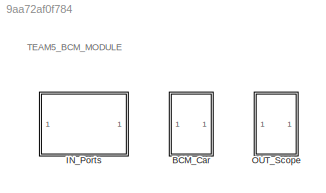
MODEL slx_9aa72af0f784
KIND model
CONFIG AbsTol = auto
CONFIG EnableMultiTasking = off
CONFIG FixedStep = auto
CONFIG MaxStep = auto
CONFIG MinStep = auto
CONFIG RelTol = 1e-3
CONFIG SampleTimeConstraint = Unconstrained
CONFIG SolverName = VariableStepAuto
CONFIG StartTime = 0.0
CONFIG StopTime = 100
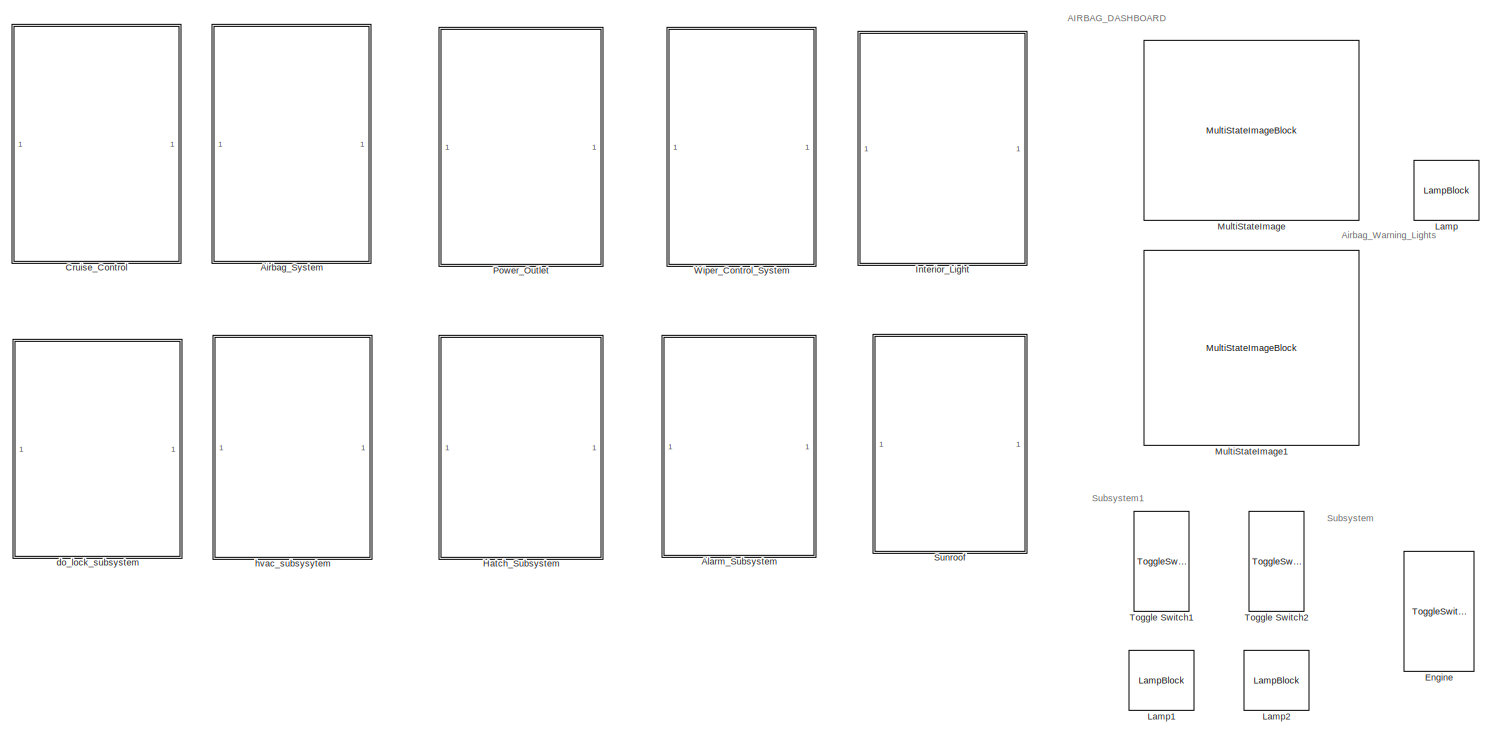
[diagram: BCM_Car - part 1/2, left side, full height]
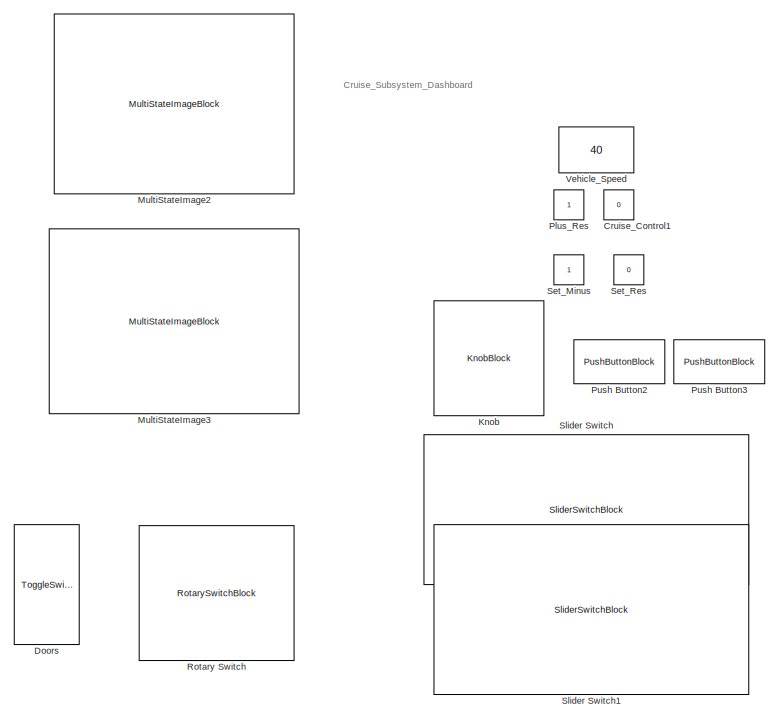
[diagram: BCM_Car - part 2/2, right side, full height]
BLOCK [SubSystem] BCM_Car
  Ports = []
  RequestExecContextInheritance = off
BLOCK [SubSystem] BCM_Car/Airbag_System
  Ports = []
  RequestExecContextInheritance = off
BLOCK [Display] BCM_Car/Airbag_System/Display_To_Check
  Decimation = 1
  Ports = [1]
BLOCK [From] BCM_Car/Airbag_System/From
  GotoTag = Driver_Seat_Airbag
  TagVisibility = global
BLOCK [From] BCM_Car/Airbag_System/From1
  GotoTag = Front_Outboard_Passenger_Airbag
  TagVisibility = global
BLOCK [From] BCM_Car/Airbag_System/From2
  GotoTag = Sec_Row_Outboard_Passengers_Airbag
  TagVisibility = global
BLOCK [From] BCM_Car/Airbag_System/From3
  GotoTag = Side_Airbags
  TagVisibility = global
BLOCK [SubSystem] BCM_Car/Airbag_System/Gate_Subsystem
  Ports = [4, 1]
  RequestExecContextInheritance = off
BLOCK [Inport] BCM_Car/Airbag_System/Gate_Subsystem/2nd_Row_Outboard_Passengers_Airbag
  Port = 3
BLOCK [Inport] BCM_Car/Airbag_System/Gate_Subsystem/Driver_Seat_Airbag
BLOCK [Inport] BCM_Car/Airbag_System/Gate_Subsystem/Front_Outboard_Passenger_Airbag
  Port = 2
BLOCK [Logic] BCM_Car/Airbag_System/Gate_Subsystem/Or_1
  AllPortsSameDT = off
  IconShape = distinctive
  Operator = OR
  OutDataTypeStr = boolean
  Ports = [2, 1]
BLOCK [Logic] BCM_Car/Airbag_System/Gate_Subsystem/Or_2
  AllPortsSameDT = off
  IconShape = distinctive
  Operator = OR
  OutDataTypeStr = boolean
  Ports = [2, 1]
BLOCK [Logic] BCM_Car/Airbag_System/Gate_Subsystem/Or_3
  AllPortsSameDT = off
  IconShape = distinctive
  Operator = OR
  OutDataTypeStr = boolean
  Ports = [2, 1]
BLOCK [Outport] BCM_Car/Airbag_System/Gate_Subsystem/Out_To_Warning_Lights
BLOCK [Inport] BCM_Car/Airbag_System/Gate_Subsystem/Side_Airbags
  Port = 4
BLOCK [Goto] BCM_Car/Airbag_System/Goto
  GotoTag = Air_Bag_Test_Out
  TagVisibility = global
BLOCK [SubSystem] BCM_Car/Alarm_Subsystem
  Ports = []
  RequestExecContextInheritance = off
BLOCK [SubSystem] BCM_Car/Alarm_Subsystem/Engine_On
  Ports = [0, 1, 0, 0, 0, 0, 0, 1]
  RequestExecContextInheritance = off
  TreatAsAtomicUnit = on
BLOCK [ActionPort] BCM_Car/Alarm_Subsystem/Engine_On/Action Port
  ActionPortLabel = case [ 1 ]:
BLOCK [Constant] BCM_Car/Alarm_Subsystem/Engine_On/Enigine_Off
  Value = 0
BLOCK [Outport] BCM_Car/Alarm_Subsystem/Engine_On/Outport
BLOCK [SwitchCase] BCM_Car/Alarm_Subsystem/Engine_On_OFF
  CaseConditions = {0,1}
  Ports = [1, 2]
  ShowDefaultCase = off
BLOCK [SubSystem] BCM_Car/Alarm_Subsystem/Engine_off_& _Door_close
  Ports = [2, 1, 0, 0, 0, 0, 0, 1]
  RequestExecContextInheritance = off
  TreatAsAtomicUnit = on
BLOCK [SubSystem] BCM_Car/Alarm_Subsystem/Engine_off_& _Door_close/ SolidOff
  Ports = [0, 1, 0, 0, 0, 0, 0, 1]
  RequestExecContextInheritance = off
  TreatAsAtomicUnit = on
BLOCK [ActionPort] BCM_Car/Alarm_Subsystem/Engine_off_& _Door_close/ SolidOff/Action Port
  ActionPortLabel = case [ 0 ]:
BLOCK [Constant] BCM_Car/Alarm_Subsystem/Engine_off_& _Door_close/ SolidOff/Constant
  Value = 0
BLOCK [Outport] BCM_Car/Alarm_Subsystem/Engine_off_& _Door_close/ SolidOff/Outport
BLOCK [ActionPort] BCM_Car/Alarm_Subsystem/Engine_off_& _Door_close/Action Port
  ActionPortLabel = case [ 0 ]:
BLOCK [SwitchCase] BCM_Car/Alarm_Subsystem/Engine_off_& _Door_close/Button_cases1
  CaseConditions = {0,1,2}
  Ports = [1, 3]
  ShowDefaultCase = off
BLOCK [SwitchCase] BCM_Car/Alarm_Subsystem/Engine_off_& _Door_close/Button_cases2
  CaseConditions = {0,1,2}
  Ports = [1, 3]
  ShowDefaultCase = off
BLOCK [Constant] BCM_Car/Alarm_Subsystem/Engine_off_& _Door_close/Constant2
BLOCK [SubSystem] BCM_Car/Alarm_Subsystem/Engine_off_& _Door_close/Doors_Locked
  Ports = [1, 1, 1]
  RequestExecContextInheritance = off
  TreatAsAtomicUnit = on
BLOCK [EnablePort] BCM_Car/Alarm_Subsystem/Engine_off_& _Door_close/Doors_Locked/Enable
  Ports = []
BLOCK [Inport] BCM_Car/Alarm_Subsystem/Engine_off_& _Door_close/Doors_Locked/Input1
BLOCK [Outport] BCM_Car/Alarm_Subsystem/Engine_off_& _Door_close/Doors_Locked/Out1
BLOCK [SubSystem] BCM_Car/Alarm_Subsystem/Engine_off_& _Door_close/Doors_Unlocked
  Ports = [1, 1, 1]
  RequestExecContextInheritance = off
  TreatAsAtomicUnit = on
BLOCK [EnablePort] BCM_Car/Alarm_Subsystem/Engine_off_& _Door_close/Doors_Unlocked/Enable
  Ports = []
BLOCK [Inport] BCM_Car/Alarm_Subsystem/Engine_off_& _Door_close/Doors_Unlocked/Input1
BLOCK [Outport] BCM_Car/Alarm_Subsystem/Engine_off_& _Door_close/Doors_Unlocked/Out1
BLOCK [SubSystem] BCM_Car/Alarm_Subsystem/Engine_off_& _Door_close/FasflasH
  Ports = [0, 1, 0, 0, 0, 0, 0, 1]
  RequestExecContextInheritance = off
  TreatAsAtomicUnit = on
BLOCK [ActionPort] BCM_Car/Alarm_Subsystem/Engine_off_& _Door_close/FasflasH/Action Port
  ActionPortLabel = case [ 2 ]:
BLOCK [Outport] BCM_Car/Alarm_Subsystem/Engine_off_& _Door_close/FasflasH/Output
BLOCK [Saturate] BCM_Car/Alarm_Subsystem/Engine_off_& _Door_close/FasflasH/Saturation
  LowerLimit = 0
  UpperLimit = 1
BLOCK [SignalGenerator] BCM_Car/Alarm_Subsystem/Engine_off_& _Door_close/FasflasH/Signal Generator
  Ports = [0, 1]
BLOCK [SubSystem] BCM_Car/Alarm_Subsystem/Engine_off_& _Door_close/Fast_flash
  Ports = [0, 1, 0, 0, 0, 0, 0, 1]
  RequestExecContextInheritance = off
  TreatAsAtomicUnit = on
BLOCK [ActionPort] BCM_Car/Alarm_Subsystem/Engine_off_& _Door_close/Fast_flash/Action Port
  ActionPortLabel = case [ 1 ]:
BLOCK [Outport] BCM_Car/Alarm_Subsystem/Engine_off_& _Door_close/Fast_flash/Output
BLOCK [Saturate] BCM_Car/Alarm_Subsystem/Engine_off_& _Door_close/Fast_flash/Saturation
  LowerLimit = 0
  UpperLimit = 1
BLOCK [SignalGenerator] BCM_Car/Alarm_Subsystem/Engine_off_& _Door_close/Fast_flash/Signal Generator
  Ports = [0, 1]
  WaveForm = square
BLOCK [Inport] BCM_Car/Alarm_Subsystem/Engine_off_& _Door_close/Input
BLOCK [Inport] BCM_Car/Alarm_Subsystem/Engine_off_& _Door_close/Input1
  Port = 2
BLOCK [Logic] BCM_Car/Alarm_Subsystem/Engine_off_& _Door_close/NOT
  AllPortsSameDT = off
  IconShape = distinctive
  Operator = NOT
  OutDataTypeStr = boolean
  Ports = [1, 1]
BLOCK [SubSystem] BCM_Car/Alarm_Subsystem/Engine_off_& _Door_close/Out_Led
  Ports = [6, 1, 1]
  RequestExecContextInheritance = off
  TreatAsAtomicUnit = on
BLOCK [EnablePort] BCM_Car/Alarm_Subsystem/Engine_off_& _Door_close/Out_Led/Enable
  Ports = []
BLOCK [Inport] BCM_Car/Alarm_Subsystem/Engine_off_& _Door_close/Out_Led/Input
  Port = 2
BLOCK [Inport] BCM_Car/Alarm_Subsystem/Engine_off_& _Door_close/Out_Led/Input1
  Port = 3
BLOCK [Inport] BCM_Car/Alarm_Subsystem/Engine_off_& _Door_close/Out_Led/Input2
  Port = 4
BLOCK [Inport] BCM_Car/Alarm_Subsystem/Engine_off_& _Door_close/Out_Led/Input3
  Port = 5
BLOCK [Inport] BCM_Car/Alarm_Subsystem/Engine_off_& _Door_close/Out_Led/Input4
  Port = 6
BLOCK [Logic] BCM_Car/Alarm_Subsystem/Engine_off_& _Door_close/Out_Led/Led_checking
  AllPortsSameDT = off
  IconShape = distinctive
  Inputs = 6
  Operator = OR
  OutDataTypeStr = boolean
  Ports = [6, 1]
BLOCK [Outport] BCM_Car/Alarm_Subsystem/Engine_off_& _Door_close/Out_Led/Out1
BLOCK [Inport] BCM_Car/Alarm_Subsystem/Engine_off_& _Door_close/Out_Led/Outport
BLOCK [Outport] BCM_Car/Alarm_Subsystem/Engine_off_& _Door_close/Output
BLOCK [SubSystem] BCM_Car/Alarm_Subsystem/Engine_off_& _Door_close/SinglePress _With delay
  Ports = [0, 1, 0, 0, 0, 0, 0, 1]
  RequestExecContextInheritance = off
  TreatAsAtomicUnit = on
BLOCK [ActionPort] BCM_Car/Alarm_Subsystem/Engine_off_& _Door_close/SinglePress _With delay/Action Port
  ActionPortLabel = case [ 1 ]:
BLOCK [Constant] BCM_Car/Alarm_Subsystem/Engine_off_& _Door_close/SinglePress _With delay/Constant1
BLOCK [Delay] BCM_Car/Alarm_Subsystem/Engine_off_& _Door_close/SinglePress _With delay/Delay
  DelayLength = 90
  InputPortMap = u0
  Ports = [1, 1]
BLOCK [SubSystem] BCM_Car/Alarm_Subsystem/Engine_off_& _Door_close/SinglePress _With delay/Enabled Subsystem
  Ports = [2, 1, 1]
  RequestExecContextInheritance = off
  TreatAsAtomicUnit = on
BLOCK [EnablePort] BCM_Car/Alarm_Subsystem/Engine_off_& _Door_close/SinglePress _With delay/Enabled Subsystem/Enable
  Ports = []
BLOCK [Inport] BCM_Car/Alarm_Subsystem/Engine_off_& _Door_close/SinglePress _With delay/Enabled Subsystem/In1
BLOCK [Inport] BCM_Car/Alarm_Subsystem/Engine_off_& _Door_close/SinglePress _With delay/Enabled Subsystem/In2
  Port = 2
BLOCK [Logic] BCM_Car/Alarm_Subsystem/Engine_off_& _Door_close/SinglePress _With delay/Enabled Subsystem/OR
  AllPortsSameDT = off
  IconShape = distinctive
  Operator = OR
  OutDataTypeStr = boolean
  Ports = [2, 1]
BLOCK [Outport] BCM_Car/Alarm_Subsystem/Engine_off_& _Door_close/SinglePress _With delay/Enabled Subsystem/Out1
BLOCK [Outport] BCM_Car/Alarm_Subsystem/Engine_off_& _Door_close/SinglePress _With delay/Output
BLOCK [Saturate] BCM_Car/Alarm_Subsystem/Engine_off_& _Door_close/SinglePress _With delay/Saturation
  LowerLimit = 0
  UpperLimit = 1
BLOCK [SignalGenerator] BCM_Car/Alarm_Subsystem/Engine_off_& _Door_close/SinglePress _With delay/Signal Generator
  Frequency = 0.5
  Ports = [0, 1]
  WaveForm = square
BLOCK [Step] BCM_Car/Alarm_Subsystem/Engine_off_& _Door_close/SinglePress _With delay/Step
  After = 0
  Before = 1
  SampleTime = 0
  Time = 30
BLOCK [SubSystem] BCM_Car/Alarm_Subsystem/Engine_off_& _Door_close/Slow_Flash
  Ports = [0, 1, 0, 0, 0, 0, 0, 1]
  RequestExecContextInheritance = off
  TreatAsAtomicUnit = on
BLOCK [ActionPort] BCM_Car/Alarm_Subsystem/Engine_off_& _Door_close/Slow_Flash/Action Port
  ActionPortLabel = case [ 2 ]:
BLOCK [Outport] BCM_Car/Alarm_Subsystem/Engine_off_& _Door_close/Slow_Flash/Output
BLOCK [Saturate] BCM_Car/Alarm_Subsystem/Engine_off_& _Door_close/Slow_Flash/Saturation
  LowerLimit = 0
  UpperLimit = 1
BLOCK [SignalGenerator] BCM_Car/Alarm_Subsystem/Engine_off_& _Door_close/Slow_Flash/Signal Generator
  Frequency = 0.5
  Ports = [0, 1]
  WaveForm = square
BLOCK [SubSystem] BCM_Car/Alarm_Subsystem/Engine_off_& _Door_close/Solid_Off
  Ports = [0, 1, 0, 0, 0, 0, 0, 1]
  RequestExecContextInheritance = off
  TreatAsAtomicUnit = on
BLOCK [ActionPort] BCM_Car/Alarm_Subsystem/Engine_off_& _Door_close/Solid_Off/Action Port
  ActionPortLabel = case [ 0 ]:
BLOCK [Constant] BCM_Car/Alarm_Subsystem/Engine_off_& _Door_close/Solid_Off/Constant
  Value = 0
BLOCK [Outport] BCM_Car/Alarm_Subsystem/Engine_off_& _Door_close/Solid_Off/Output
BLOCK [From] BCM_Car/Alarm_Subsystem/From
  GotoTag = Engine_signal
  TagVisibility = global
BLOCK [From] BCM_Car/Alarm_Subsystem/From1
  GotoTag = Door_Signal
  TagVisibility = global
BLOCK [From] BCM_Car/Alarm_Subsystem/From2
  GotoTag = ButtonCondition_Signal
  TagVisibility = global
BLOCK [Goto] BCM_Car/Alarm_Subsystem/Goto
  GotoTag = LED_SCOPE
  TagVisibility = global
BLOCK [Goto] BCM_Car/Alarm_Subsystem/Goto1
  GotoTag = Door_signal_Scope
  TagVisibility = global
BLOCK [Goto] BCM_Car/Alarm_Subsystem/Goto2
  GotoTag = Button_scope
  TagVisibility = global
BLOCK [Goto] BCM_Car/Alarm_Subsystem/Goto3
  GotoTag = Engine_scope
  TagVisibility = global
BLOCK [Display] BCM_Car/Alarm_Subsystem/Led_condition
  Decimation = 1
  Ports = [1]
BLOCK [Logic] BCM_Car/Alarm_Subsystem/O_T_Led
  AllPortsSameDT = off
  IconShape = distinctive
  Operator = OR
  OutDataTypeStr = boolean
  Ports = [2, 1]
BLOCK [SubSystem] BCM_Car/Cruise_Control
  Ports = []
  RequestExecContextInheritance = off
BLOCK [Logic] BCM_Car/Cruise_Control/AND
  AllPortsSameDT = off
  IconShape = distinctive
  OutDataTypeStr = boolean
  Ports = [2, 1]
BLOCK [Logic] BCM_Car/Cruise_Control/AND1
  AllPortsSameDT = off
  IconShape = distinctive
  OutDataTypeStr = boolean
  Ports = [2, 1]
BLOCK [Logic] BCM_Car/Cruise_Control/AND2
  AllPortsSameDT = off
  IconShape = distinctive
  OutDataTypeStr = boolean
  Ports = [2, 1]
BLOCK [Logic] BCM_Car/Cruise_Control/AND3
  AllPortsSameDT = off
  IconShape = distinctive
  OutDataTypeStr = boolean
  Ports = [2, 1]
BLOCK [Logic] BCM_Car/Cruise_Control/AND4
  AllPortsSameDT = off
  IconShape = distinctive
  OutDataTypeStr = boolean
  Ports = [2, 1]
BLOCK [Logic] BCM_Car/Cruise_Control/AND5
  AllPortsSameDT = off
  IconShape = distinctive
  OutDataTypeStr = boolean
  Ports = [2, 1]
BLOCK [Constant] BCM_Car/Cruise_Control/Constant2
BLOCK [Constant] BCM_Car/Cruise_Control/Constant4
  Value = 0
BLOCK [Display] BCM_Car/Cruise_Control/Display_Test1
  Decimation = 1
  Ports = [1]
BLOCK [Display] BCM_Car/Cruise_Control/Display_Test2
  Decimation = 1
  Ports = [1]
BLOCK [From] BCM_Car/Cruise_Control/From
  GotoTag = Vehicle_Speed
  TagVisibility = global
BLOCK [From] BCM_Car/Cruise_Control/From1
  GotoTag = Cruise_Control
  TagVisibility = global
BLOCK [From] BCM_Car/Cruise_Control/From2
  GotoTag = Set_Res_Control
  TagVisibility = global
BLOCK [Goto] BCM_Car/Cruise_Control/Goto
  GotoTag = Set_Res_Test
  TagVisibility = global
BLOCK [Goto] BCM_Car/Cruise_Control/Goto1
  GotoTag = Cruise_Control_Test
  TagVisibility = global
BLOCK [If] BCM_Car/Cruise_Control/If
  IfExpression = u1 == 1
  Ports = [1, 1]
  ShowElse = off
BLOCK [SubSystem] BCM_Car/Cruise_Control/If Action Subsystem
  Ports = [1, 1, 0, 0, 0, 0, 0, 1]
  RequestExecContextInheritance = off
  TreatAsAtomicUnit = on
BLOCK [ActionPort] BCM_Car/Cruise_Control/If Action Subsystem/Action Port
  ActionPortLabel = if(u1 == 1)
BLOCK [Inport] BCM_Car/Cruise_Control/If Action Subsystem/In1
BLOCK [Outport] BCM_Car/Cruise_Control/If Action Subsystem/Out1
BLOCK [SubSystem] BCM_Car/Cruise_Control/If Action Subsystem1
  Ports = [1, 1, 0, 0, 0, 0, 0, 1]
  RequestExecContextInheritance = off
  TreatAsAtomicUnit = on
BLOCK [ActionPort] BCM_Car/Cruise_Control/If Action Subsystem1/Action Port
  ActionPortLabel = if(u1 == 1)
BLOCK [Sum] BCM_Car/Cruise_Control/If Action Subsystem1/Add
  IconShape = rectangular
  Ports = [2, 1]
BLOCK [SubSystem] BCM_Car/Cruise_Control/If Action Subsystem1/Chart
  ErrorFcn = Stateflow.Translate.translate
  PermitHierarchicalResolution = ExplicitOnly
  Ports = [2, 1]
  RequestExecContextInheritance = off
  SFBlockType = Chart
  TreatAsAtomicUnit = on
BLOCK [Demux] BCM_Car/Cruise_Control/If Action Subsystem1/Chart/ Demux 
  Outputs = 1
  Ports = [1, 1]
BLOCK [S-Function] BCM_Car/Cruise_Control/If Action Subsystem1/Chart/ SFunction 
  EnableBusSupport = on
  FunctionName = sf_sfun
  PortCounts = [2 2]
  Ports = [2, 2]
  SFcnIsStateOwnerBlock = off
  SFunctionDeploymentMode = off
  Tag = Stateflow S-Function 1
BLOCK [Terminator] BCM_Car/Cruise_Control/If Action Subsystem1/Chart/ Terminator 
BLOCK [Outport] BCM_Car/Cruise_Control/If Action Subsystem1/Chart/data
BLOCK [Inport] BCM_Car/Cruise_Control/If Action Subsystem1/Chart/dec
BLOCK [Inport] BCM_Car/Cruise_Control/If Action Subsystem1/Chart/inc
  Port = 2
BLOCK [Inport] BCM_Car/Cruise_Control/If Action Subsystem1/In1
BLOCK [Outport] BCM_Car/Cruise_Control/If Action Subsystem1/Out1
BLOCK [SubSystem] BCM_Car/Cruise_Control/If Action Subsystem1/Signal Builder
  ClipboardFcn = sigbuilder_block('clipboard');
  CloseFcn = sigbuilder_block('close');
  ContinueFcn = sigbuilder_block('continue');
  CopyFcn = sigbuilder_block('copy');
  DeleteFcn = sigbuilder_block('delete');
  LoadFcn = sigbuilder_block('load');
  MaskHideContents = on
  ModelCloseFcn = sigbuilder_block('modelClose');
  NameChangeFcn = sigbuilder_block('namechange');
  OpenFcn = sigbuilder_block('open',[0.75 30.75 718.5 715.5 ]);
  PauseFcn = sigbuilder_block('pause');
  Ports = [0, 2]
  PreSaveFcn = sigbuilder_block('preSave');
  RequestExecContextInheritance = off
  StartFcn = sigbuilder_block('start');
  StopFcn = sigbuilder_block('stop');
  Tag = STV Subsys
BLOCK [Demux] BCM_Car/Cruise_Control/If Action Subsystem1/Signal Builder/Demux
  DisplayOption = none
  Outputs = 2
  Ports = [1, 2]
  Tag = STV Demux
BLOCK [FromWorkspace] BCM_Car/Cruise_Control/If Action Subsystem1/Signal Builder/FromWs
  Tag = STV FromWs
  VariableName = tuvar
BLOCK [Outport] BCM_Car/Cruise_Control/If Action Subsystem1/Signal Builder/Plus_Or_Resume
  Tag = STV Outport
BLOCK [Outport] BCM_Car/Cruise_Control/If Action Subsystem1/Signal Builder/Set_Or_Minus
  Port = 2
  Tag = STV Outport
BLOCK [If] BCM_Car/Cruise_Control/If1
  IfExpression = u1 == 1
  Ports = [1, 1]
  ShowElse = off
BLOCK [Logic] BCM_Car/Cruise_Control/OR
  AllPortsSameDT = off
  IconShape = distinctive
  Operator = OR
  OutDataTypeStr = boolean
  Ports = [2, 1]
BLOCK [Switch] BCM_Car/Cruise_Control/Switch
  InputSameDT = off
  SaturateOnIntegerOverflow = off
  Threshold = 40
BLOCK [Logic] BCM_Car/Cruise_Control/XOR
  AllPortsSameDT = off
  IconShape = distinctive
  Operator = XOR
  OutDataTypeStr = boolean
  Ports = [2, 1]
BLOCK [Constant] BCM_Car/Cruise_Control1
  Commented = on
  Value = 0
BLOCK [ToggleSwitchBlock] BCM_Car/Doors
BLOCK [ToggleSwitchBlock] BCM_Car/Engine
BLOCK [SubSystem] BCM_Car/Hatch_Subsystem
  Ports = []
  RequestExecContextInheritance = off
BLOCK [From] BCM_Car/Hatch_Subsystem/From
  GotoTag = Bonnet_Button
  TagVisibility = global
BLOCK [From] BCM_Car/Hatch_Subsystem/From1
  GotoTag = Hatch_button
  TagVisibility = global
BLOCK [Goto] BCM_Car/Hatch_Subsystem/Goto
  GotoTag = Bonnet_scope
  TagVisibility = global
BLOCK [Goto] BCM_Car/Hatch_Subsystem/Goto1
  GotoTag = Hatch_scope
  TagVisibility = global
BLOCK [SubSystem] BCM_Car/Hatch_Subsystem/H_B_condition
  ErrorFcn = Stateflow.Translate.translate
  PermitHierarchicalResolution = ExplicitOnly
  Ports = [2, 2]
  RequestExecContextInheritance = off
  SFBlockType = Chart
  TreatAsAtomicUnit = on
BLOCK [Demux] BCM_Car/Hatch_Subsystem/H_B_condition/ Demux 
  Outputs = 1
  Ports = [1, 1]
BLOCK [S-Function] BCM_Car/Hatch_Subsystem/H_B_condition/ SFunction 
  EnableBusSupport = on
  FunctionName = sf_sfun
  PortCounts = [2 3]
  Ports = [2, 3]
  SFcnIsStateOwnerBlock = off
  SFunctionDeploymentMode = off
  Tag = Stateflow S-Function 4
BLOCK [Terminator] BCM_Car/Hatch_Subsystem/H_B_condition/ Terminator 
BLOCK [Inport] BCM_Car/Hatch_Subsystem/H_B_condition/BonnetButton
BLOCK [Inport] BCM_Car/Hatch_Subsystem/H_B_condition/hatchButton
  Port = 2
BLOCK [Outport] BCM_Car/Hatch_Subsystem/H_B_condition/x
  Port = 2
BLOCK [Outport] BCM_Car/Hatch_Subsystem/H_B_condition/y
BLOCK [Display] BCM_Car/Hatch_Subsystem/Hatch_Bonnet_condition
  Decimation = 1
  Ports = [1]
BLOCK [Logic] BCM_Car/Hatch_Subsystem/OR
  AllPortsSameDT = off
  IconShape = distinctive
  Operator = OR
  OutDataTypeStr = boolean
  Ports = [2, 1]
BLOCK [SubSystem] BCM_Car/Interior_Light
  Ports = []
  RequestExecContextInheritance = off
BLOCK [From] BCM_Car/Interior_Light/From
  GotoTag = Inst_Light
  TagVisibility = global
BLOCK [From] BCM_Car/Interior_Light/From1
  GotoTag = Fron_Read_Light
  TagVisibility = global
BLOCK [From] BCM_Car/Interior_Light/From2
  GotoTag = Rear_Read_Light
  TagVisibility = global
BLOCK [From] BCM_Car/Interior_Light/From3
  GotoTag = Dome_L
  TagVisibility = global
BLOCK [SubSystem] BCM_Car/Interior_Light/Function_Light
  ErrorFcn = Stateflow.Translate.translate
  PermitHierarchicalResolution = ExplicitOnly
  Ports = [4, 4]
  RequestExecContextInheritance = off
  SFBlockType = MATLAB Function
  TreatAsAtomicUnit = on
BLOCK [Demux] BCM_Car/Interior_Light/Function_Light/ Demux 
  Outputs = 1
  Ports = [1, 1]
BLOCK [S-Function] BCM_Car/Interior_Light/Function_Light/ SFunction 
  EnableBusSupport = on
  FunctionName = sf_sfun
  PortCounts = [4 5]
  Ports = [4, 5]
  SFcnIsStateOwnerBlock = off
  SFunctionDeploymentMode = off
  Tag = Stateflow S-Function 2
BLOCK [Terminator] BCM_Car/Interior_Light/Function_Light/ Terminator 
BLOCK [Inport] BCM_Car/Interior_Light/Function_Light/u
BLOCK [Inport] BCM_Car/Interior_Light/Function_Light/u1
  Port = 2
BLOCK [Inport] BCM_Car/Interior_Light/Function_Light/u2
  Port = 3
BLOCK [Inport] BCM_Car/Interior_Light/Function_Light/u3
  Port = 4
BLOCK [Outport] BCM_Car/Interior_Light/Function_Light/y
BLOCK [Outport] BCM_Car/Interior_Light/Function_Light/y1
  Port = 2
BLOCK [Outport] BCM_Car/Interior_Light/Function_Light/y2
  Port = 3
BLOCK [Outport] BCM_Car/Interior_Light/Function_Light/y3
  Port = 4
BLOCK [Goto] BCM_Car/Interior_Light/Goto
  GotoTag = Ou_Inst
  TagVisibility = global
BLOCK [Goto] BCM_Car/Interior_Light/Goto1
  GotoTag = Ou_Fron
  TagVisibility = global
BLOCK [Goto] BCM_Car/Interior_Light/Goto2
  GotoTag = Ou_Rear
  TagVisibility = global
BLOCK [Goto] BCM_Car/Interior_Light/Goto3
  GotoTag = Ou_Dome
  TagVisibility = global
BLOCK [KnobBlock] BCM_Car/Knob
BLOCK [LampBlock] BCM_Car/Lamp
BLOCK [LampBlock] BCM_Car/Lamp1
BLOCK [LampBlock] BCM_Car/Lamp2
BLOCK [MultiStateImageBlock] BCM_Car/MultiStateImage
BLOCK [MultiStateImageBlock] BCM_Car/MultiStateImage1
BLOCK [MultiStateImageBlock] BCM_Car/MultiStateImage2
BLOCK [MultiStateImageBlock] BCM_Car/MultiStateImage3
BLOCK [Constant] BCM_Car/Plus_Res
  Commented = on
BLOCK [SubSystem] BCM_Car/Power_Outlet
  Ports = []
  RequestExecContextInheritance = off
BLOCK [From] BCM_Car/Power_Outlet/From
  GotoTag = Engine_Input
  TagVisibility = global
BLOCK [Constant] BCM_Car/Power_Outlet/I_Const_0
  Value = 0
BLOCK [Constant] BCM_Car/Power_Outlet/I_Const_1
BLOCK [SubSystem] BCM_Car/Power_Outlet/Power_Outlet_Subsystem
  Ports = [1]
  RequestExecContextInheritance = off
BLOCK [Logic] BCM_Car/Power_Outlet/Power_Outlet_Subsystem/AND condition(if both are high)
  AllPortsSameDT = off
  IconShape = distinctive
  OutDataTypeStr = boolean
  Ports = [2, 1]
BLOCK [Constant] BCM_Car/Power_Outlet/Power_Outlet_Subsystem/Charging_Port
BLOCK [SubSystem] BCM_Car/Power_Outlet/Power_Outlet_Subsystem/Charging_Subsystem
  Ports = [1]
  RequestExecContextInheritance = off
BLOCK [Goto] BCM_Car/Power_Outlet/Power_Outlet_Subsystem/Charging_Subsystem/Goto
  GotoTag = O_Charging_Status
  TagVisibility = global
BLOCK [Inport] BCM_Car/Power_Outlet/Power_Outlet_Subsystem/Charging_Subsystem/In1
BLOCK [Constant] BCM_Car/Power_Outlet/Power_Outlet_Subsystem/Charging_Subsystem/Off_Constant_Display
  Value = 0
BLOCK [Constant] BCM_Car/Power_Outlet/Power_Outlet_Subsystem/Charging_Subsystem/On_Constant_Display
BLOCK [Switch] BCM_Car/Power_Outlet/Power_Outlet_Subsystem/Charging_Subsystem/Switch
  Criteria = u2 > Threshold
  InputSameDT = off
  SaturateOnIntegerOverflow = off
BLOCK [Inport] BCM_Car/Power_Outlet/Power_Outlet_Subsystem/In1
BLOCK [Switch] BCM_Car/Power_Outlet/Switch
  Criteria = u2 > Threshold
  InputSameDT = off
  SaturateOnIntegerOverflow = off
BLOCK [PushButtonBlock] BCM_Car/Push Button2
  ButtonText = SET-
BLOCK [PushButtonBlock] BCM_Car/Push Button3
  ButtonText = +RES
BLOCK [RotarySwitchBlock] BCM_Car/Rotary Switch
BLOCK [Constant] BCM_Car/Set_Minus
  Commented = on
BLOCK [Constant] BCM_Car/Set_Res
  Commented = on
  Value = 0
BLOCK [SliderSwitchBlock] BCM_Car/Slider Switch
BLOCK [SliderSwitchBlock] BCM_Car/Slider Switch1
BLOCK [SubSystem] BCM_Car/Sunroof
  Ports = []
  RequestExecContextInheritance = off
BLOCK [From] BCM_Car/Sunroof/From
  GotoTag = In_Su_Roof
  TagVisibility = global
BLOCK [From] BCM_Car/Sunroof/From1
  GotoTag = I_Sensor
  TagVisibility = global
BLOCK [SubSystem] BCM_Car/Sunroof/Function_Sun
  ErrorFcn = Stateflow.Translate.translate
  PermitHierarchicalResolution = ExplicitOnly
  Ports = [2, 1]
  RequestExecContextInheritance = off
  SFBlockType = MATLAB Function
  TreatAsAtomicUnit = on
BLOCK [Demux] BCM_Car/Sunroof/Function_Sun/ Demux 
  Outputs = 1
  Ports = [1, 1]
BLOCK [S-Function] BCM_Car/Sunroof/Function_Sun/ SFunction 
  EnableBusSupport = on
  FunctionName = sf_sfun
  PortCounts = [2 2]
  Ports = [2, 2]
  SFcnIsStateOwnerBlock = off
  SFunctionDeploymentMode = off
  Tag = Stateflow S-Function 3
BLOCK [Terminator] BCM_Car/Sunroof/Function_Sun/ Terminator 
BLOCK [Inport] BCM_Car/Sunroof/Function_Sun/u
BLOCK [Inport] BCM_Car/Sunroof/Function_Sun/v
  Port = 2
BLOCK [Outport] BCM_Car/Sunroof/Function_Sun/y
BLOCK [Goto] BCM_Car/Sunroof/Goto
  GotoTag = O_Sun_R
  TagVisibility = global
BLOCK [ToggleSwitchBlock] BCM_Car/Toggle Switch1
BLOCK [ToggleSwitchBlock] BCM_Car/Toggle Switch2
BLOCK [Constant] BCM_Car/Vehicle_Speed
  Commented = on
  Value = 40
BLOCK [SubSystem] BCM_Car/Wiper_Control_System
  Ports = []
  RequestExecContextInheritance = off
BLOCK [From] BCM_Car/Wiper_Control_System/From
  GotoTag = In_Value_Wiper
  TagVisibility = global
BLOCK [Goto] BCM_Car/Wiper_Control_System/Goto
  GotoTag = O_Display
  TagVisibility = global
BLOCK [Constant] BCM_Car/Wiper_Control_System/High_Speed
  Value = 3
BLOCK [Constant] BCM_Car/Wiper_Control_System/Low_Speed
BLOCK [Constant] BCM_Car/Wiper_Control_System/Medium_Speed
  Value = 2
BLOCK [Constant] BCM_Car/Wiper_Control_System/Mist
  Value = 4
BLOCK [MultiPortSwitch] BCM_Car/Wiper_Control_System/Multiport Switch for input conditions
  DiagnosticForDefault = None
  InputSameDT = off
  Inputs = 5
  Ports = [6, 1]
  SaturateOnIntegerOverflow = off
BLOCK [Constant] BCM_Car/Wiper_Control_System/Off
  Value = 5
BLOCK [SubSystem] BCM_Car/do_lock_subsystem
  Ports = []
  RequestExecContextInheritance = off
BLOCK [Logic] BCM_Car/do_lock_subsystem/AND
  AllPortsSameDT = off
  IconShape = distinctive
  Inputs = 4
  OutDataTypeStr = boolean
  Ports = [4, 1]
BLOCK [SubSystem] BCM_Car/do_lock_subsystem/Door_lo_subsystem
  Ports = [0, 4, 1]
  RequestExecContextInheritance = off
  TreatAsAtomicUnit = on
BLOCK [SubSystem] BCM_Car/do_lock_subsystem/Door_lo_subsystem/Auto_lo_Mode
  Ports = [0, 4, 0, 0, 0, 0, 0, 1]
  RequestExecContextInheritance = off
  TreatAsAtomicUnit = on
BLOCK [ActionPort] BCM_Car/do_lock_subsystem/Door_lo_subsystem/Auto_lo_Mode/Action Port
  ActionPortLabel = case [ 1 ]:
BLOCK [Outport] BCM_Car/do_lock_subsystem/Door_lo_subsystem/Auto_lo_Mode/Out1
BLOCK [Outport] BCM_Car/do_lock_subsystem/Door_lo_subsystem/Auto_lo_Mode/Out2
  Port = 2
BLOCK [Outport] BCM_Car/do_lock_subsystem/Door_lo_subsystem/Auto_lo_Mode/Out3
  Port = 3
BLOCK [Outport] BCM_Car/do_lock_subsystem/Door_lo_subsystem/Auto_lo_Mode/Out4
  Port = 4
BLOCK [Constant] BCM_Car/do_lock_subsystem/Door_lo_subsystem/Auto_lo_Mode/lock 3
BLOCK [Constant] BCM_Car/do_lock_subsystem/Door_lo_subsystem/Auto_lo_Mode/lock1
BLOCK [Constant] BCM_Car/do_lock_subsystem/Door_lo_subsystem/Auto_lo_Mode/lock2
BLOCK [Constant] BCM_Car/do_lock_subsystem/Door_lo_subsystem/Auto_lo_Mode/lock4
BLOCK [SubSystem] BCM_Car/do_lock_subsystem/Door_lo_subsystem/De_lo_mode
  Ports = [0, 4, 0, 0, 0, 0, 0, 1]
  RequestExecContextInheritance = off
  TreatAsAtomicUnit = on
BLOCK [ActionPort] BCM_Car/do_lock_subsystem/Door_lo_subsystem/De_lo_mode/Action Port
  ActionPortLabel = case [ 4 ]:
BLOCK [SubSystem] BCM_Car/do_lock_subsystem/Door_lo_subsystem/De_lo_mode/Enabled Subsystem
  Ports = [0, 4, 1]
  RequestExecContextInheritance = off
  TreatAsAtomicUnit = on
BLOCK [Constant] BCM_Car/do_lock_subsystem/Door_lo_subsystem/De_lo_mode/Enabled Subsystem/Constant
BLOCK [Constant] BCM_Car/do_lock_subsystem/Door_lo_subsystem/De_lo_mode/Enabled Subsystem/Constant1
BLOCK [Constant] BCM_Car/do_lock_subsystem/Door_lo_subsystem/De_lo_mode/Enabled Subsystem/Constant2
BLOCK [Constant] BCM_Car/do_lock_subsystem/Door_lo_subsystem/De_lo_mode/Enabled Subsystem/Constant3
BLOCK [EnablePort] BCM_Car/do_lock_subsystem/Door_lo_subsystem/De_lo_mode/Enabled Subsystem/Enable
  Ports = []
BLOCK [Outport] BCM_Car/do_lock_subsystem/Door_lo_subsystem/De_lo_mode/Enabled Subsystem/Out1
BLOCK [Outport] BCM_Car/do_lock_subsystem/Door_lo_subsystem/De_lo_mode/Enabled Subsystem/Output
  Port = 2
BLOCK [Outport] BCM_Car/do_lock_subsystem/Door_lo_subsystem/De_lo_mode/Enabled Subsystem/Output1
  Port = 3
BLOCK [Outport] BCM_Car/do_lock_subsystem/Door_lo_subsystem/De_lo_mode/Enabled Subsystem/Output2
  Port = 4
BLOCK [Outport] BCM_Car/do_lock_subsystem/Door_lo_subsystem/De_lo_mode/Out1
BLOCK [Outport] BCM_Car/do_lock_subsystem/Door_lo_subsystem/De_lo_mode/Output
  Port = 2
BLOCK [Outport] BCM_Car/do_lock_subsystem/Door_lo_subsystem/De_lo_mode/Output1
  Port = 3
BLOCK [Outport] BCM_Car/do_lock_subsystem/Door_lo_subsystem/De_lo_mode/Output2
  Port = 4
BLOCK [Step] BCM_Car/do_lock_subsystem/Door_lo_subsystem/De_lo_mode/delay
  SampleTime = 0
BLOCK [Merge] BCM_Car/do_lock_subsystem/Door_lo_subsystem/Do1_Con_Out
  Inputs = 4
  Ports = [4, 1]
BLOCK [Merge] BCM_Car/do_lock_subsystem/Door_lo_subsystem/Do2_Con_Out
  Inputs = 4
  Ports = [4, 1]
BLOCK [Merge] BCM_Car/do_lock_subsystem/Door_lo_subsystem/Do3_Con_Out
  Inputs = 4
  Ports = [4, 1]
BLOCK [Merge] BCM_Car/do_lock_subsystem/Door_lo_subsystem/Do4_Con_Out
  Inputs = 4
  Ports = [4, 1]
BLOCK [EnablePort] BCM_Car/do_lock_subsystem/Door_lo_subsystem/Enable
  Ports = []
BLOCK [SwitchCase] BCM_Car/do_lock_subsystem/Door_lo_subsystem/Lo_Mod_Selector
  CaseConditions = {1,2,3,4}
  Ports = [1, 4]
  ShowDefaultCase = off
BLOCK [SubSystem] BCM_Car/do_lock_subsystem/Door_lo_subsystem/Loc_o_p_mode
  Ports = [0, 4, 0, 0, 0, 0, 0, 1]
  RequestExecContextInheritance = off
  TreatAsAtomicUnit = on
BLOCK [ActionPort] BCM_Car/do_lock_subsystem/Door_lo_subsystem/Loc_o_p_mode/Action Port
  ActionPortLabel = case [ 2 ]:
BLOCK [Outport] BCM_Car/do_lock_subsystem/Door_lo_subsystem/Loc_o_p_mode/Out1
BLOCK [Outport] BCM_Car/do_lock_subsystem/Door_lo_subsystem/Loc_o_p_mode/Out2
  Port = 2
BLOCK [Outport] BCM_Car/do_lock_subsystem/Door_lo_subsystem/Loc_o_p_mode/Out3
  Port = 3
BLOCK [Outport] BCM_Car/do_lock_subsystem/Door_lo_subsystem/Loc_o_p_mode/Out4
  Port = 4
BLOCK [Constant] BCM_Car/do_lock_subsystem/Door_lo_subsystem/Loc_o_p_mode/lock 3
BLOCK [Constant] BCM_Car/do_lock_subsystem/Door_lo_subsystem/Loc_o_p_mode/lock1
  Value = 0
BLOCK [Constant] BCM_Car/do_lock_subsystem/Door_lo_subsystem/Loc_o_p_mode/lock2
BLOCK [Constant] BCM_Car/do_lock_subsystem/Door_lo_subsystem/Loc_o_p_mode/lock4
BLOCK [Outport] BCM_Car/do_lock_subsystem/Door_lo_subsystem/Output
BLOCK [Outport] BCM_Car/do_lock_subsystem/Door_lo_subsystem/Output1
  Port = 2
BLOCK [Outport] BCM_Car/do_lock_subsystem/Door_lo_subsystem/Output2
  Port = 3
BLOCK [Outport] BCM_Car/do_lock_subsystem/Door_lo_subsystem/Output3
  Port = 4
BLOCK [SubSystem] BCM_Car/do_lock_subsystem/Door_lo_subsystem/Rem_Lo_mode
  Ports = [0, 4, 0, 0, 0, 0, 0, 1]
  RequestExecContextInheritance = off
  TreatAsAtomicUnit = on
BLOCK [ActionPort] BCM_Car/do_lock_subsystem/Door_lo_subsystem/Rem_Lo_mode/Action Port
  ActionPortLabel = case [ 3 ]:
BLOCK [Outport] BCM_Car/do_lock_subsystem/Door_lo_subsystem/Rem_Lo_mode/Outport
BLOCK [Outport] BCM_Car/do_lock_subsystem/Door_lo_subsystem/Rem_Lo_mode/Output
  Port = 2
BLOCK [Outport] BCM_Car/do_lock_subsystem/Door_lo_subsystem/Rem_Lo_mode/Output1
  Port = 3
BLOCK [Outport] BCM_Car/do_lock_subsystem/Door_lo_subsystem/Rem_Lo_mode/Output2
  Port = 4
BLOCK [SubSystem] BCM_Car/do_lock_subsystem/Door_lo_subsystem/Rem_Lo_mode/R_S_Lo_subsystem
  Ports = [0, 4, 1]
  RequestExecContextInheritance = off
  TreatAsAtomicUnit = on
BLOCK [EnablePort] BCM_Car/do_lock_subsystem/Door_lo_subsystem/Rem_Lo_mode/R_S_Lo_subsystem/Enable
  Ports = []
BLOCK [Outport] BCM_Car/do_lock_subsystem/Door_lo_subsystem/Rem_Lo_mode/R_S_Lo_subsystem/Outport
BLOCK [Outport] BCM_Car/do_lock_subsystem/Door_lo_subsystem/Rem_Lo_mode/R_S_Lo_subsystem/Output
  Port = 2
BLOCK [Outport] BCM_Car/do_lock_subsystem/Door_lo_subsystem/Rem_Lo_mode/R_S_Lo_subsystem/Output1
  Port = 3
BLOCK [Outport] BCM_Car/do_lock_subsystem/Door_lo_subsystem/Rem_Lo_mode/R_S_Lo_subsystem/Output2
  Port = 4
BLOCK [Constant] BCM_Car/do_lock_subsystem/Door_lo_subsystem/Rem_Lo_mode/R_S_Lo_subsystem/lock1
BLOCK [Constant] BCM_Car/do_lock_subsystem/Door_lo_subsystem/Rem_Lo_mode/R_S_Lo_subsystem/lock2
BLOCK [Constant] BCM_Car/do_lock_subsystem/Door_lo_subsystem/Rem_Lo_mode/R_S_Lo_subsystem/lock3
BLOCK [Constant] BCM_Car/do_lock_subsystem/Door_lo_subsystem/Rem_Lo_mode/R_S_Lo_subsystem/lock4
BLOCK [SubSystem] BCM_Car/do_lock_subsystem/Door_lo_subsystem/Rem_Lo_mode/Signal Builder
  ClipboardFcn = sigbuilder_block('clipboard');
  CloseFcn = sigbuilder_block('close');
  ContinueFcn = sigbuilder_block('continue');
  CopyFcn = sigbuilder_block('copy');
  DeleteFcn = sigbuilder_block('delete');
  LoadFcn = sigbuilder_block('load');
  MaskHideContents = on
  ModelCloseFcn = sigbuilder_block('modelClose');
  NameChangeFcn = sigbuilder_block('namechange');
  OpenFcn = sigbuilder_block('open',[646.5 174 550.5 399.75 ]);
  PauseFcn = sigbuilder_block('pause');
  Ports = [0, 1]
  PreSaveFcn = sigbuilder_block('preSave');
  RequestExecContextInheritance = off
  StartFcn = sigbuilder_block('start');
  StopFcn = sigbuilder_block('stop');
  Tag = STV Subsys
BLOCK [Demux] BCM_Car/do_lock_subsystem/Door_lo_subsystem/Rem_Lo_mode/Signal Builder/Demux
  DisplayOption = none
  Outputs = 1
  Ports = [1, 1]
  Tag = STV Demux
BLOCK [FromWorkspace] BCM_Car/do_lock_subsystem/Door_lo_subsystem/Rem_Lo_mode/Signal Builder/FromWs
  Tag = STV FromWs
  VariableName = tuvar
BLOCK [Outport] BCM_Car/do_lock_subsystem/Door_lo_subsystem/Rem_Lo_mode/Signal Builder/Sw_Enable
  Tag = STV Outport
BLOCK [SubSystem] BCM_Car/do_lock_subsystem/Door_lo_subsystem/Signal Builder
  ClipboardFcn = sigbuilder_block('clipboard');
  CloseFcn = sigbuilder_block('close');
  ContinueFcn = sigbuilder_block('continue');
  CopyFcn = sigbuilder_block('copy');
  DeleteFcn = sigbuilder_block('delete');
  LoadFcn = sigbuilder_block('load');
  MaskHideContents = on
  ModelCloseFcn = sigbuilder_block('modelClose');
  NameChangeFcn = sigbuilder_block('namechange');
  OpenFcn = sigbuilder_block('open',[437.6 199.2 550.4 400 ]);
  PauseFcn = sigbuilder_block('pause');
  Ports = [0, 1]
  PreSaveFcn = sigbuilder_block('preSave');
  RequestExecContextInheritance = off
  StartFcn = sigbuilder_block('start');
  StopFcn = sigbuilder_block('stop');
  Tag = STV Subsys
BLOCK [Demux] BCM_Car/do_lock_subsystem/Door_lo_subsystem/Signal Builder/Demux
  DisplayOption = none
  Outputs = 1
  Ports = [1, 1]
  Tag = STV Demux
BLOCK [FromWorkspace] BCM_Car/do_lock_subsystem/Door_lo_subsystem/Signal Builder/FromWs
  Tag = STV FromWs
  VariableName = tuvar
BLOCK [Outport] BCM_Car/do_lock_subsystem/Door_lo_subsystem/Signal Builder/Loc_select1
  Tag = STV Outport
BLOCK [From] BCM_Car/do_lock_subsystem/From
  GotoTag = Fr_Do_Cond
  TagVisibility = global
BLOCK [From] BCM_Car/do_lock_subsystem/From1
  GotoTag = Fl_Do_Cond
  TagVisibility = global
BLOCK [From] BCM_Car/do_lock_subsystem/From2
  GotoTag = Br_Do_Cond
  TagVisibility = global
BLOCK [From] BCM_Car/do_lock_subsystem/From3
  GotoTag = Bl_Do_Cond
  TagVisibility = global
BLOCK [Goto] BCM_Car/do_lock_subsystem/Goto
  GotoTag = Do1_Con_Out
  TagVisibility = global
BLOCK [Goto] BCM_Car/do_lock_subsystem/Goto1
  GotoTag = Do2_Con_Out
  TagVisibility = global
BLOCK [Goto] BCM_Car/do_lock_subsystem/Goto2
  GotoTag = Do3_Con_Out
  TagVisibility = global
BLOCK [Goto] BCM_Car/do_lock_subsystem/Goto3
  GotoTag = Do4_Con_Out
  TagVisibility = global
BLOCK [SubSystem] BCM_Car/hvac_subsysytem
  Ports = []
  RequestExecContextInheritance = off
BLOCK [Logic] BCM_Car/hvac_subsysytem/AND
  AllPortsSameDT = off
  IconShape = distinctive
  OutDataTypeStr = boolean
  Ports = [2, 1]
BLOCK [From] BCM_Car/hvac_subsysytem/From
  GotoTag = Fan_Cond
  TagVisibility = global
BLOCK [From] BCM_Car/hvac_subsysytem/From1
  GotoTag = Ign_Cond
  TagVisibility = global
BLOCK [From] BCM_Car/hvac_subsysytem/From2
  GotoTag = Sel_cas
  TagVisibility = global
BLOCK [From] BCM_Car/hvac_subsysytem/From3
  GotoTag = Fan_Sp_Sel
  TagVisibility = global
BLOCK [From] BCM_Car/hvac_subsysytem/From4
  GotoTag = Ac_tem_Con
  TagVisibility = global
BLOCK [From] BCM_Car/hvac_subsysytem/From5
  GotoTag = He_tem_Con
  TagVisibility = global
BLOCK [From] BCM_Car/hvac_subsysytem/From6
  GotoTag = Air_Ven
  TagVisibility = global
BLOCK [Goto] BCM_Car/hvac_subsysytem/Goto10
  GotoTag = Po_out4
  TagVisibility = global
BLOCK [Goto] BCM_Car/hvac_subsysytem/Goto7
  GotoTag = Po_out1
  TagVisibility = global
BLOCK [Goto] BCM_Car/hvac_subsysytem/Goto8
  GotoTag = Po_out2
  TagVisibility = global
BLOCK [Goto] BCM_Car/hvac_subsysytem/Goto9
  GotoTag = Po_out3
  TagVisibility = global
BLOCK [SubSystem] BCM_Car/hvac_subsysytem/ac_he_fan_subsystem
  Ports = [5, 4, 1]
  RequestExecContextInheritance = off
BLOCK [EnablePort] BCM_Car/hvac_subsysytem/ac_he_fan_subsystem/Enable
  Ports = []
BLOCK [Inport] BCM_Car/hvac_subsysytem/ac_he_fan_subsystem/Input
BLOCK [Inport] BCM_Car/hvac_subsysytem/ac_he_fan_subsystem/Input1
  Port = 2
BLOCK [Inport] BCM_Car/hvac_subsysytem/ac_he_fan_subsystem/Input2
  Port = 3
BLOCK [Inport] BCM_Car/hvac_subsysytem/ac_he_fan_subsystem/Input3
  Port = 4
BLOCK [Inport] BCM_Car/hvac_subsysytem/ac_he_fan_subsystem/Input4
  Port = 5
BLOCK [Outport] BCM_Car/hvac_subsysytem/ac_he_fan_subsystem/Output
  IconDisplay = Port number and signal name
BLOCK [Outport] BCM_Car/hvac_subsysytem/ac_he_fan_subsystem/Output1
  IconDisplay = Port number and signal name
  Port = 2
BLOCK [Outport] BCM_Car/hvac_subsysytem/ac_he_fan_subsystem/Output2
  Port = 3
BLOCK [Outport] BCM_Car/hvac_subsysytem/ac_he_fan_subsystem/Output3
  Port = 4
BLOCK [Merge] BCM_Car/hvac_subsysytem/ac_he_fan_subsystem/Po_out1
  Inputs = 3
  Ports = [3, 1]
BLOCK [Merge] BCM_Car/hvac_subsysytem/ac_he_fan_subsystem/Po_out2
  Inputs = 3
  Ports = [3, 1]
BLOCK [Merge] BCM_Car/hvac_subsysytem/ac_he_fan_subsystem/Po_out3
  Inputs = 3
  Ports = [3, 1]
BLOCK [Merge] BCM_Car/hvac_subsysytem/ac_he_fan_subsystem/Po_out4
  Inputs = 3
  Ports = [3, 1]
BLOCK [SwitchCase] BCM_Car/hvac_subsysytem/ac_he_fan_subsystem/Sel_which 
  CaseConditions = {1,2,3}
  Ports = [1, 3]
  ShowDefaultCase = off
BLOCK [SubSystem] BCM_Car/hvac_subsysytem/ac_he_fan_subsystem/Switch Case Action Subsystem1
  Ports = [4, 4, 0, 0, 0, 0, 0, 1]
  RequestExecContextInheritance = off
  TreatAsAtomicUnit = on
BLOCK [ActionPort] BCM_Car/hvac_subsysytem/ac_he_fan_subsystem/Switch Case Action Subsystem1/Action Port
  ActionPortLabel = case [ 1 ]:
BLOCK [Inport] BCM_Car/hvac_subsysytem/ac_he_fan_subsystem/Switch Case Action Subsystem1/In1
BLOCK [Inport] BCM_Car/hvac_subsysytem/ac_he_fan_subsystem/Switch Case Action Subsystem1/In2
  Port = 2
BLOCK [Inport] BCM_Car/hvac_subsysytem/ac_he_fan_subsystem/Switch Case Action Subsystem1/In3
  Port = 3
BLOCK [Inport] BCM_Car/hvac_subsysytem/ac_he_fan_subsystem/Switch Case Action Subsystem1/In4
  Port = 4
BLOCK [Outport] BCM_Car/hvac_subsysytem/ac_he_fan_subsystem/Switch Case Action Subsystem1/Out1
BLOCK [Outport] BCM_Car/hvac_subsysytem/ac_he_fan_subsystem/Switch Case Action Subsystem1/Output
  Port = 2
BLOCK [Outport] BCM_Car/hvac_subsysytem/ac_he_fan_subsystem/Switch Case Action Subsystem1/Output1
  Port = 3
BLOCK [Outport] BCM_Car/hvac_subsysytem/ac_he_fan_subsystem/Switch Case Action Subsystem1/Output2
  Port = 4
BLOCK [SubSystem] BCM_Car/hvac_subsysytem/ac_he_fan_subsystem/Switch Case Action Subsystem2
  Ports = [4, 4, 0, 0, 0, 0, 0, 1]
  RequestExecContextInheritance = off
  TreatAsAtomicUnit = on
BLOCK [ActionPort] BCM_Car/hvac_subsysytem/ac_he_fan_subsystem/Switch Case Action Subsystem2/Action Port
  ActionPortLabel = case [ 2 ]:
BLOCK [Inport] BCM_Car/hvac_subsysytem/ac_he_fan_subsystem/Switch Case Action Subsystem2/In1
BLOCK [Inport] BCM_Car/hvac_subsysytem/ac_he_fan_subsystem/Switch Case Action Subsystem2/In2
  Port = 2
BLOCK [Inport] BCM_Car/hvac_subsysytem/ac_he_fan_subsystem/Switch Case Action Subsystem2/In3
  Port = 4
BLOCK [Inport] BCM_Car/hvac_subsysytem/ac_he_fan_subsystem/Switch Case Action Subsystem2/In4
  Port = 3
BLOCK [Outport] BCM_Car/hvac_subsysytem/ac_he_fan_subsystem/Switch Case Action Subsystem2/Out1
BLOCK [Outport] BCM_Car/hvac_subsysytem/ac_he_fan_subsystem/Switch Case Action Subsystem2/Output
  Port = 2
BLOCK [Outport] BCM_Car/hvac_subsysytem/ac_he_fan_subsystem/Switch Case Action Subsystem2/Output1
  Port = 3
BLOCK [Outport] BCM_Car/hvac_subsysytem/ac_he_fan_subsystem/Switch Case Action Subsystem2/Output2
  Port = 4
BLOCK [SubSystem] BCM_Car/hvac_subsysytem/ac_he_fan_subsystem/Switch Case Action Subsystem3
  Ports = [4, 4, 0, 0, 0, 0, 0, 1]
  RequestExecContextInheritance = off
  TreatAsAtomicUnit = on
BLOCK [ActionPort] BCM_Car/hvac_subsysytem/ac_he_fan_subsystem/Switch Case Action Subsystem3/Action Port
  ActionPortLabel = case [ 3 ]:
BLOCK [Inport] BCM_Car/hvac_subsysytem/ac_he_fan_subsystem/Switch Case Action Subsystem3/In1
BLOCK [Inport] BCM_Car/hvac_subsysytem/ac_he_fan_subsystem/Switch Case Action Subsystem3/In2
  Port = 2
BLOCK [Inport] BCM_Car/hvac_subsysytem/ac_he_fan_subsystem/Switch Case Action Subsystem3/In3
  Port = 3
BLOCK [Inport] BCM_Car/hvac_subsysytem/ac_he_fan_subsystem/Switch Case Action Subsystem3/In4
  Port = 4
BLOCK [Outport] BCM_Car/hvac_subsysytem/ac_he_fan_subsystem/Switch Case Action Subsystem3/Out1
BLOCK [Outport] BCM_Car/hvac_subsysytem/ac_he_fan_subsystem/Switch Case Action Subsystem3/Output
  Port = 2
BLOCK [Outport] BCM_Car/hvac_subsysytem/ac_he_fan_subsystem/Switch Case Action Subsystem3/Output1
  Port = 3
BLOCK [Outport] BCM_Car/hvac_subsysytem/ac_he_fan_subsystem/Switch Case Action Subsystem3/Output2
  Port = 4
BLOCK [SubSystem] BCM_Car/hvac_subsysytem/ac_he_fan_subsystem/Switch Case Action Subsystem4
  Ports = [0, 1, 0, 0, 0, 0, 0, 1]
  RequestExecContextInheritance = off
  TreatAsAtomicUnit = on
BLOCK [ActionPort] BCM_Car/hvac_subsysytem/ac_he_fan_subsystem/Switch Case Action Subsystem4/Action Port
  ActionPortLabel = case [ 1 ]:
BLOCK [Constant] BCM_Car/hvac_subsysytem/ac_he_fan_subsystem/Switch Case Action Subsystem4/Constant
BLOCK [Outport] BCM_Car/hvac_subsysytem/ac_he_fan_subsystem/Switch Case Action Subsystem4/Out1
BLOCK [SubSystem] BCM_Car/hvac_subsysytem/ac_he_fan_subsystem/Switch Case Action Subsystem5
  Ports = [0, 1, 0, 0, 0, 0, 0, 1]
  RequestExecContextInheritance = off
  TreatAsAtomicUnit = on
BLOCK [ActionPort] BCM_Car/hvac_subsysytem/ac_he_fan_subsystem/Switch Case Action Subsystem5/Action Port
  ActionPortLabel = case [ 2 ]:
BLOCK [Constant] BCM_Car/hvac_subsysytem/ac_he_fan_subsystem/Switch Case Action Subsystem5/Constant
BLOCK [Outport] BCM_Car/hvac_subsysytem/ac_he_fan_subsystem/Switch Case Action Subsystem5/Out1
BLOCK [SubSystem] BCM_Car/hvac_subsysytem/ac_he_fan_subsystem/Switch Case Action Subsystem6
  Ports = [0, 1, 0, 0, 0, 0, 0, 1]
  RequestExecContextInheritance = off
  TreatAsAtomicUnit = on
BLOCK [ActionPort] BCM_Car/hvac_subsysytem/ac_he_fan_subsystem/Switch Case Action Subsystem6/Action Port
  ActionPortLabel = case [ 3 ]:
BLOCK [Constant] BCM_Car/hvac_subsysytem/ac_he_fan_subsystem/Switch Case Action Subsystem6/Constant
BLOCK [Outport] BCM_Car/hvac_subsysytem/ac_he_fan_subsystem/Switch Case Action Subsystem6/Out1
BLOCK [SwitchCase] BCM_Car/hvac_subsysytem/ac_he_fan_subsystem/Switch Case1
  CaseConditions = {1,2,3}
  Ports = [1, 3]
  ShowDefaultCase = off
BLOCK [SubSystem] IN_Ports
  Ports = []
  RequestExecContextInheritance = off
BLOCK [SubSystem] IN_Ports/Airbag_And_Cruise_InPorts
  Ports = []
  RequestExecContextInheritance = off
BLOCK [Goto] IN_Ports/Airbag_And_Cruise_InPorts/Goto
  GotoTag = Driver_Seat_Airbag
  TagVisibility = global
BLOCK [Goto] IN_Ports/Airbag_And_Cruise_InPorts/Goto1
  GotoTag = Front_Outboard_Passenger_Airbag
  TagVisibility = global
BLOCK [Goto] IN_Ports/Airbag_And_Cruise_InPorts/Goto2
  GotoTag = Sec_Row_Outboard_Passengers_Airbag
  TagVisibility = global
BLOCK [Goto] IN_Ports/Airbag_And_Cruise_InPorts/Goto3
  GotoTag = Side_Airbags
  TagVisibility = global
BLOCK [Goto] IN_Ports/Airbag_And_Cruise_InPorts/Goto4
  GotoTag = Vehicle_Speed
  TagVisibility = global
BLOCK [Goto] IN_Ports/Airbag_And_Cruise_InPorts/Goto5
  GotoTag = Cruise_Control
  TagVisibility = global
BLOCK [Goto] IN_Ports/Airbag_And_Cruise_InPorts/Goto6
  GotoTag = Set_Res_Control
  TagVisibility = global
BLOCK [SubSystem] IN_Ports/Airbag_And_Cruise_InPorts/Square_Signals
  ClipboardFcn = sigbuilder_block('clipboard');
  CloseFcn = sigbuilder_block('close');
  ContinueFcn = sigbuilder_block('continue');
  CopyFcn = sigbuilder_block('copy');
  DeleteFcn = sigbuilder_block('delete');
  LoadFcn = sigbuilder_block('load');
  MaskHideContents = on
  ModelCloseFcn = sigbuilder_block('modelClose');
  NameChangeFcn = sigbuilder_block('namechange');
  OpenFcn = sigbuilder_block('open',[0 30 1440 722.25 ]);
  PauseFcn = sigbuilder_block('pause');
  Ports = [0, 7]
  PreSaveFcn = sigbuilder_block('preSave');
  RequestExecContextInheritance = off
  StartFcn = sigbuilder_block('start');
  StopFcn = sigbuilder_block('stop');
  Tag = STV Subsys
BLOCK [Outport] IN_Ports/Airbag_And_Cruise_InPorts/Square_Signals/Airbag_Test_Signal1
  Tag = STV Outport
BLOCK [Outport] IN_Ports/Airbag_And_Cruise_InPorts/Square_Signals/Airbag_Test_Signal2
  Port = 2
  Tag = STV Outport
BLOCK [Outport] IN_Ports/Airbag_And_Cruise_InPorts/Square_Signals/Airbag_Test_Signal3
  Port = 3
  Tag = STV Outport
BLOCK [Outport] IN_Ports/Airbag_And_Cruise_InPorts/Square_Signals/Airbag_Test_Signal4
  Port = 4
  Tag = STV Outport
BLOCK [Outport] IN_Ports/Airbag_And_Cruise_InPorts/Square_Signals/Cruise_Control
  Port = 6
  Tag = STV Outport
BLOCK [Demux] IN_Ports/Airbag_And_Cruise_InPorts/Square_Signals/Demux
  DisplayOption = none
  Outputs = 7
  Ports = [1, 7]
  Tag = STV Demux
BLOCK [FromWorkspace] IN_Ports/Airbag_And_Cruise_InPorts/Square_Signals/FromWs
  Tag = STV FromWs
  VariableName = tuvar
BLOCK [Outport] IN_Ports/Airbag_And_Cruise_InPorts/Square_Signals/Set_Res_Control
  Port = 7
  Tag = STV Outport
BLOCK [Outport] IN_Ports/Airbag_And_Cruise_InPorts/Square_Signals/Vehicle_Speed
  Port = 5
  Tag = STV Outport
BLOCK [SubSystem] IN_Ports/Alarm_and_Hatch_InPorts
  Ports = []
  RequestExecContextInheritance = off
BLOCK [Goto] IN_Ports/Alarm_and_Hatch_InPorts/Goto
  GotoTag = Engine_signal
  TagVisibility = global
BLOCK [Goto] IN_Ports/Alarm_and_Hatch_InPorts/Goto1
  GotoTag = Door_Signal
  TagVisibility = global
BLOCK [Goto] IN_Ports/Alarm_and_Hatch_InPorts/Goto2
  GotoTag = ButtonCondition_Signal
  TagVisibility = global
BLOCK [Goto] IN_Ports/Alarm_and_Hatch_InPorts/Goto3
  GotoTag = Bonnet_Button
  TagVisibility = global
BLOCK [Goto] IN_Ports/Alarm_and_Hatch_InPorts/Goto4
  GotoTag = Hatch_button
  TagVisibility = global
BLOCK [SubSystem] IN_Ports/Alarm_and_Hatch_InPorts/Signal Builder
  ClipboardFcn = sigbuilder_block('clipboard');
  CloseFcn = sigbuilder_block('close');
  ContinueFcn = sigbuilder_block('continue');
  CopyFcn = sigbuilder_block('copy');
  DeleteFcn = sigbuilder_block('delete');
  LoadFcn = sigbuilder_block('load');
  MaskHideContents = on
  ModelCloseFcn = sigbuilder_block('modelClose');
  NameChangeFcn = sigbuilder_block('namechange');
  OpenFcn = sigbuilder_block('open',[437.6 199.2 550.4 400 ]);
  PauseFcn = sigbuilder_block('pause');
  Ports = [0, 5]
  PreSaveFcn = sigbuilder_block('preSave');
  RequestExecContextInheritance = off
  StartFcn = sigbuilder_block('start');
  StopFcn = sigbuilder_block('stop');
  Tag = STV Subsys
BLOCK [Outport] IN_Ports/Alarm_and_Hatch_InPorts/Signal Builder/Bonnet_button
  Port = 4
  Tag = STV Outport
BLOCK [Outport] IN_Ports/Alarm_and_Hatch_InPorts/Signal Builder/ButtonCondition_Signal
  Port = 3
  Tag = STV Outport
BLOCK [Demux] IN_Ports/Alarm_and_Hatch_InPorts/Signal Builder/Demux
  DisplayOption = none
  Outputs = 5
  Ports = [1, 5]
  Tag = STV Demux
BLOCK [Outport] IN_Ports/Alarm_and_Hatch_InPorts/Signal Builder/Door_signal
  Port = 2
  Tag = STV Outport
BLOCK [Outport] IN_Ports/Alarm_and_Hatch_InPorts/Signal Builder/Engine_Signal
  Tag = STV Outport
BLOCK [FromWorkspace] IN_Ports/Alarm_and_Hatch_InPorts/Signal Builder/FromWs
  Tag = STV FromWs
  VariableName = tuvar
BLOCK [Outport] IN_Ports/Alarm_and_Hatch_InPorts/Signal Builder/Hatch_button
  Port = 5
  Tag = STV Outport
BLOCK [SubSystem] IN_Ports/Hvac_and_Door_InPorts
  Ports = []
  RequestExecContextInheritance = off
BLOCK [Goto] IN_Ports/Hvac_and_Door_InPorts/Goto
  GotoTag = Fr_Do_Cond
  TagVisibility = global
BLOCK [Goto] IN_Ports/Hvac_and_Door_InPorts/Goto1
  GotoTag = Fl_Do_Cond
  TagVisibility = global
BLOCK [Goto] IN_Ports/Hvac_and_Door_InPorts/Goto10
  GotoTag = Air_Ven
  TagVisibility = global
BLOCK [Goto] IN_Ports/Hvac_and_Door_InPorts/Goto2
  GotoTag = Bl_Do_Cond
  TagVisibility = global
BLOCK [Goto] IN_Ports/Hvac_and_Door_InPorts/Goto3
  GotoTag = Br_Do_Cond
  TagVisibility = global
BLOCK [Goto] IN_Ports/Hvac_and_Door_InPorts/Goto4
  GotoTag = Fan_Cond
  TagVisibility = global
BLOCK [Goto] IN_Ports/Hvac_and_Door_InPorts/Goto5
  GotoTag = Ign_Cond
  TagVisibility = global
BLOCK [Goto] IN_Ports/Hvac_and_Door_InPorts/Goto6
  GotoTag = Sel_cas
  TagVisibility = global
BLOCK [Goto] IN_Ports/Hvac_and_Door_InPorts/Goto7
  GotoTag = Fan_Sp_Sel
  TagVisibility = global
BLOCK [Goto] IN_Ports/Hvac_and_Door_InPorts/Goto8
  GotoTag = Ac_tem_Con
  TagVisibility = global
BLOCK [Goto] IN_Ports/Hvac_and_Door_InPorts/Goto9
  GotoTag = He_tem_Con
  TagVisibility = global
BLOCK [SubSystem] IN_Ports/Hvac_and_Door_InPorts/Signal Builder
  ClipboardFcn = sigbuilder_block('clipboard');
  CloseFcn = sigbuilder_block('close');
  ContinueFcn = sigbuilder_block('continue');
  CopyFcn = sigbuilder_block('copy');
  DeleteFcn = sigbuilder_block('delete');
  LoadFcn = sigbuilder_block('load');
  MaskHideContents = on
  ModelCloseFcn = sigbuilder_block('modelClose');
  NameChangeFcn = sigbuilder_block('namechange');
  OpenFcn = sigbuilder_block('open',[544.5 115.5 550.5 399.75 ]);
  PauseFcn = sigbuilder_block('pause');
  Ports = [0, 11]
  PreSaveFcn = sigbuilder_block('preSave');
  RequestExecContextInheritance = off
  StartFcn = sigbuilder_block('start');
  StopFcn = sigbuilder_block('stop');
  Tag = STV Subsys
BLOCK [Outport] IN_Ports/Hvac_and_Door_InPorts/Signal Builder/AIr_Ven
  Port = 11
  Tag = STV Outport
BLOCK [Outport] IN_Ports/Hvac_and_Door_InPorts/Signal Builder/Ac_tem_Con
  Port = 9
  Tag = STV Outport
BLOCK [Outport] IN_Ports/Hvac_and_Door_InPorts/Signal Builder/Bl_Do_Cond
  Port = 3
  Tag = STV Outport
BLOCK [Outport] IN_Ports/Hvac_and_Door_InPorts/Signal Builder/Br_Do_Cond
  Port = 4
  Tag = STV Outport
BLOCK [Demux] IN_Ports/Hvac_and_Door_InPorts/Signal Builder/Demux
  DisplayOption = none
  Outputs = 11
  Ports = [1, 11]
  Tag = STV Demux
BLOCK [Outport] IN_Ports/Hvac_and_Door_InPorts/Signal Builder/Fan_Cond
  Port = 5
  Tag = STV Outport
BLOCK [Outport] IN_Ports/Hvac_and_Door_InPorts/Signal Builder/Fan_Sp_Sel
  Port = 8
  Tag = STV Outport
BLOCK [Outport] IN_Ports/Hvac_and_Door_InPorts/Signal Builder/Fl_Do_Cond
  Port = 2
  Tag = STV Outport
BLOCK [Outport] IN_Ports/Hvac_and_Door_InPorts/Signal Builder/Fr_Do_Cond
  Tag = STV Outport
BLOCK [FromWorkspace] IN_Ports/Hvac_and_Door_InPorts/Signal Builder/FromWs
  Tag = STV FromWs
  VariableName = tuvar
BLOCK [Outport] IN_Ports/Hvac_and_Door_InPorts/Signal Builder/He_tem_Con
  Port = 10
  Tag = STV Outport
BLOCK [Outport] IN_Ports/Hvac_and_Door_InPorts/Signal Builder/Ign_Cond
  Port = 6
  Tag = STV Outport
BLOCK [Outport] IN_Ports/Hvac_and_Door_InPorts/Signal Builder/Sel_cas
  Port = 7
  Tag = STV Outport
BLOCK [SubSystem] IN_Ports/Sunroof_and_InteriorLights_InPorts
  Ports = []
  RequestExecContextInheritance = off
BLOCK [Goto] IN_Ports/Sunroof_and_InteriorLights_InPorts/Goto10
  GotoTag = Fron_Read_Light
  TagVisibility = global
BLOCK [Goto] IN_Ports/Sunroof_and_InteriorLights_InPorts/Goto11
  GotoTag = Rear_Read_Light
  TagVisibility = global
BLOCK [Goto] IN_Ports/Sunroof_and_InteriorLights_InPorts/Goto12
  GotoTag = Dome_L
  TagVisibility = global
BLOCK [Goto] IN_Ports/Sunroof_and_InteriorLights_InPorts/Goto13
  GotoTag = In_Su_Roof
  TagVisibility = global
BLOCK [Goto] IN_Ports/Sunroof_and_InteriorLights_InPorts/Goto14
  GotoTag = I_Sensor
  TagVisibility = global
BLOCK [Goto] IN_Ports/Sunroof_and_InteriorLights_InPorts/Goto9
  GotoTag = Inst_Light
  TagVisibility = global
BLOCK [SubSystem] IN_Ports/Sunroof_and_InteriorLights_InPorts/Signal Builder2
  ClipboardFcn = sigbuilder_block('clipboard');
  CloseFcn = sigbuilder_block('close');
  ContinueFcn = sigbuilder_block('continue');
  CopyFcn = sigbuilder_block('copy');
  DeleteFcn = sigbuilder_block('delete');
  LoadFcn = sigbuilder_block('load');
  MaskHideContents = on
  ModelCloseFcn = sigbuilder_block('modelClose');
  NameChangeFcn = sigbuilder_block('namechange');
  OpenFcn = sigbuilder_block('open',[373.5 207 544.5 355.5 ]);
  PauseFcn = sigbuilder_block('pause');
  Ports = [0, 4]
  PreSaveFcn = sigbuilder_block('preSave');
  RequestExecContextInheritance = off
  StartFcn = sigbuilder_block('start');
  StopFcn = sigbuilder_block('stop');
  Tag = STV Subsys
BLOCK [Demux] IN_Ports/Sunroof_and_InteriorLights_InPorts/Signal Builder2/Demux
  DisplayOption = none
  Ports = [1, 4]
  Tag = STV Demux
BLOCK [Outport] IN_Ports/Sunroof_and_InteriorLights_InPorts/Signal Builder2/Dome_L
  Port = 3
  Tag = STV Outport
BLOCK [FromWorkspace] IN_Ports/Sunroof_and_InteriorLights_InPorts/Signal Builder2/FromWs
  Tag = STV FromWs
  VariableName = tuvar
BLOCK [Outport] IN_Ports/Sunroof_and_InteriorLights_InPorts/Signal Builder2/Fron_Read_Light
  Tag = STV Outport
BLOCK [Outport] IN_Ports/Sunroof_and_InteriorLights_InPorts/Signal Builder2/Inst_Light
  Port = 4
  Tag = STV Outport
BLOCK [Outport] IN_Ports/Sunroof_and_InteriorLights_InPorts/Signal Builder2/Rear_Read_Light
  Port = 2
  Tag = STV Outport
BLOCK [SubSystem] IN_Ports/Sunroof_and_InteriorLights_InPorts/Signal Builder3
  ClipboardFcn = sigbuilder_block('clipboard');
  CloseFcn = sigbuilder_block('close');
  ContinueFcn = sigbuilder_block('continue');
  CopyFcn = sigbuilder_block('copy');
  DeleteFcn = sigbuilder_block('delete');
  LoadFcn = sigbuilder_block('load');
  MaskHideContents = on
  ModelCloseFcn = sigbuilder_block('modelClose');
  NameChangeFcn = sigbuilder_block('namechange');
  OpenFcn = sigbuilder_block('open',[591 352.5 550.5 359.25 ]);
  PauseFcn = sigbuilder_block('pause');
  Ports = [0, 2]
  PreSaveFcn = sigbuilder_block('preSave');
  RequestExecContextInheritance = off
  StartFcn = sigbuilder_block('start');
  StopFcn = sigbuilder_block('stop');
  Tag = STV Subsys
BLOCK [Demux] IN_Ports/Sunroof_and_InteriorLights_InPorts/Signal Builder3/Demux
  DisplayOption = none
  Outputs = 2
  Ports = [1, 2]
  Tag = STV Demux
BLOCK [FromWorkspace] IN_Ports/Sunroof_and_InteriorLights_InPorts/Signal Builder3/FromWs
  Tag = STV FromWs
  VariableName = tuvar
BLOCK [Outport] IN_Ports/Sunroof_and_InteriorLights_InPorts/Signal Builder3/I_Sensor
  Port = 2
  Tag = STV Outport
BLOCK [Outport] IN_Ports/Sunroof_and_InteriorLights_InPorts/Signal Builder3/In_Su_Roof
  Tag = STV Outport
BLOCK [SubSystem] IN_Ports/Wiper_and_Power_InPorts
  Ports = []
  RequestExecContextInheritance = off
BLOCK [Goto] IN_Ports/Wiper_and_Power_InPorts/Goto7
  GotoTag = Engine_Input
  TagVisibility = global
BLOCK [Goto] IN_Ports/Wiper_and_Power_InPorts/Goto8
  GotoTag = In_Value_Wiper
  TagVisibility = global
BLOCK [SubSystem] IN_Ports/Wiper_and_Power_InPorts/Signal Builder
  ClipboardFcn = sigbuilder_block('clipboard');
  CloseFcn = sigbuilder_block('close');
  ContinueFcn = sigbuilder_block('continue');
  CopyFcn = sigbuilder_block('copy');
  DeleteFcn = sigbuilder_block('delete');
  LoadFcn = sigbuilder_block('load');
  MaskHideContents = on
  ModelCloseFcn = sigbuilder_block('modelClose');
  NameChangeFcn = sigbuilder_block('namechange');
  OpenFcn = sigbuilder_block('open',[197.25 223.5 550.5 359.25 ]);
  PauseFcn = sigbuilder_block('pause');
  Ports = [0, 1]
  PreSaveFcn = sigbuilder_block('preSave');
  RequestExecContextInheritance = off
  StartFcn = sigbuilder_block('start');
  StopFcn = sigbuilder_block('stop');
  Tag = STV Subsys
BLOCK [Demux] IN_Ports/Wiper_and_Power_InPorts/Signal Builder/Demux
  DisplayOption = none
  Outputs = 1
  Ports = [1, 1]
  Tag = STV Demux
BLOCK [Outport] IN_Ports/Wiper_and_Power_InPorts/Signal Builder/Engine_Input
  Tag = STV Outport
BLOCK [FromWorkspace] IN_Ports/Wiper_and_Power_InPorts/Signal Builder/FromWs
  Tag = STV FromWs
  VariableName = tuvar
BLOCK [SubSystem] IN_Ports/Wiper_and_Power_InPorts/Signal Builder1
  ClipboardFcn = sigbuilder_block('clipboard');
  CloseFcn = sigbuilder_block('close');
  ContinueFcn = sigbuilder_block('continue');
  CopyFcn = sigbuilder_block('copy');
  DeleteFcn = sigbuilder_block('delete');
  LoadFcn = sigbuilder_block('load');
  MaskHideContents = on
  ModelCloseFcn = sigbuilder_block('modelClose');
  NameChangeFcn = sigbuilder_block('namechange');
  OpenFcn = sigbuilder_block('open',[0.75 30.75 718.5 715.5 ]);
  PauseFcn = sigbuilder_block('pause');
  Ports = [0, 1]
  PreSaveFcn = sigbuilder_block('preSave');
  RequestExecContextInheritance = off
  StartFcn = sigbuilder_block('start');
  StopFcn = sigbuilder_block('stop');
  Tag = STV Subsys
BLOCK [Demux] IN_Ports/Wiper_and_Power_InPorts/Signal Builder1/Demux
  DisplayOption = none
  Outputs = 1
  Ports = [1, 1]
  Tag = STV Demux
BLOCK [FromWorkspace] IN_Ports/Wiper_and_Power_InPorts/Signal Builder1/FromWs
  Tag = STV FromWs
  VariableName = tuvar
BLOCK [Outport] IN_Ports/Wiper_and_Power_InPorts/Signal Builder1/In_Value_Wiper
  Tag = STV Outport
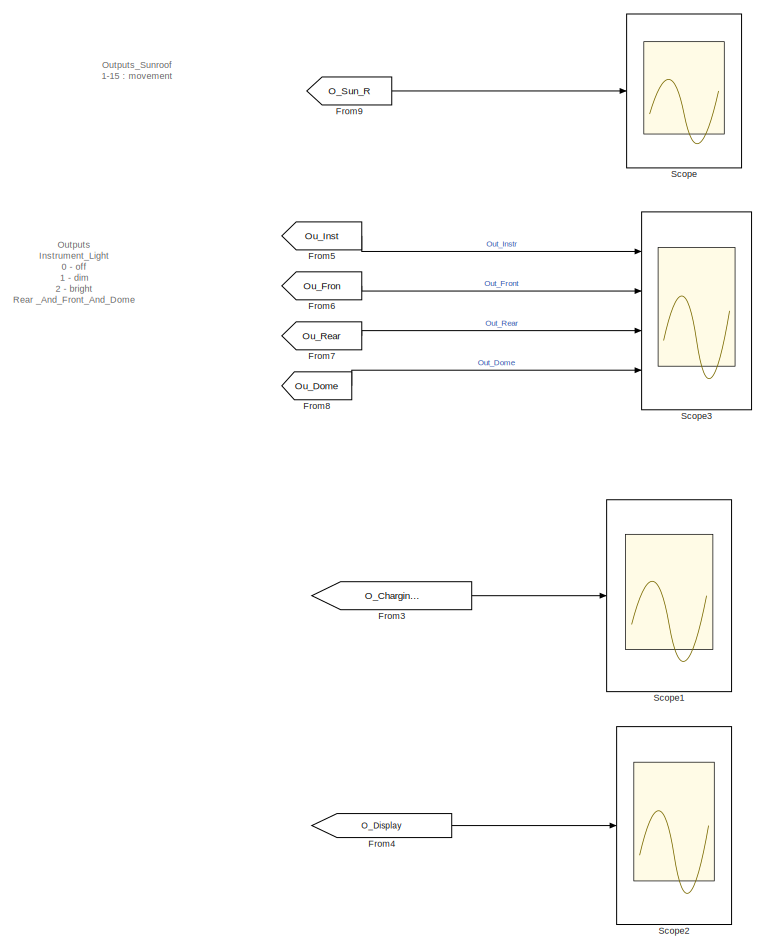
[diagram: OUT_Scope - part 1/3, left side, full height]
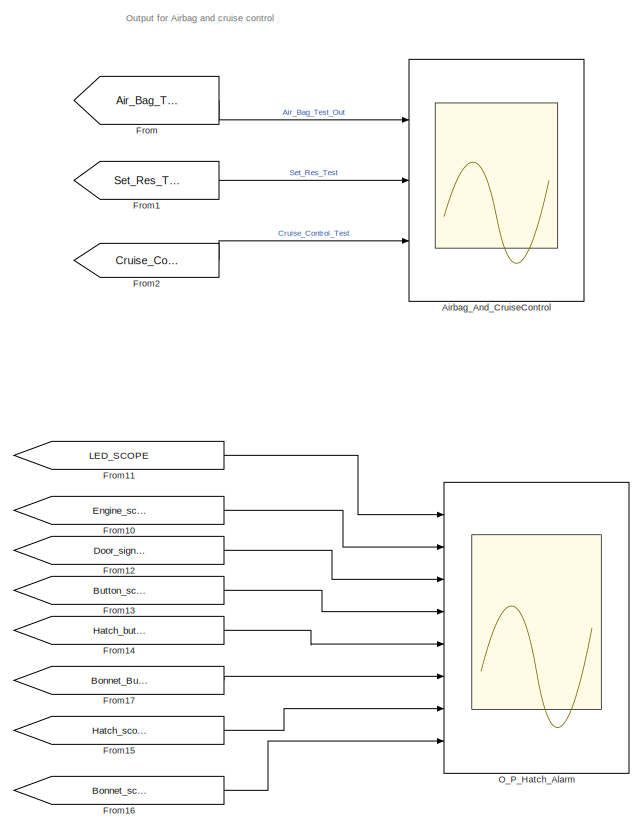
[diagram: OUT_Scope - part 2/3, center side, full height]
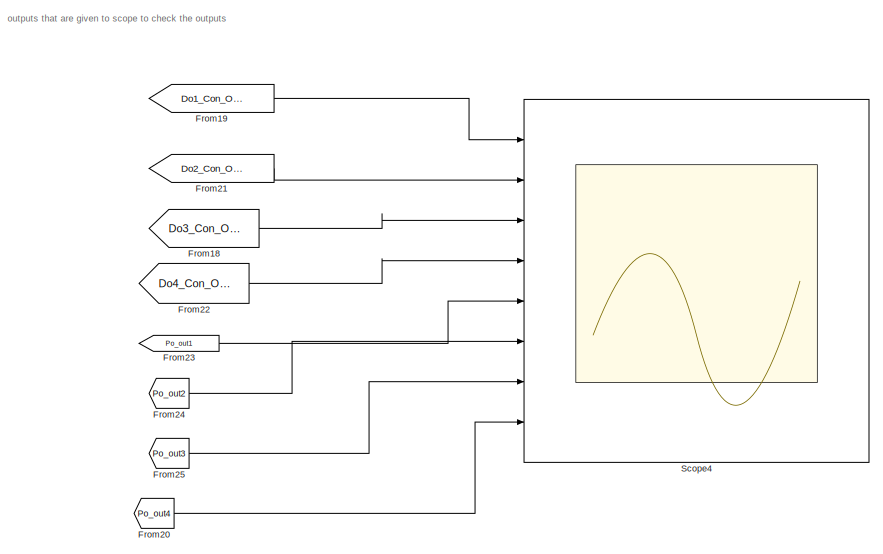
[diagram: OUT_Scope - part 3/3, middle right region]
BLOCK [SubSystem] OUT_Scope
  Ports = []
  RequestExecContextInheritance = off
BLOCK [Scope] OUT_Scope/Airbag_And_CruiseControl
  Floating = off
  NumInputPorts = 3
  Ports = [3]
  ScopeSpecificationString = Simulink.scopes.TimeScopeBlockCfg('CurrentConfiguration', extmgr.ConfigurationSet(extmgr.Configuration('Core','General UI',true),extmgr.Configuration('Core','Source UI',true),extmgr.Configuration('Sources','WiredSimulink',true,'DataLoggingVariableName','ScopeData1'),extmgr.Configuration('Visuals','Time Domain',true,'SerializedDisplays',{struct('MinYLimReal','-0.125','MaxYLimReal','1.125','YLabelRe...<+2800ch>
BLOCK [From] OUT_Scope/From
  GotoTag = Air_Bag_Test_Out
  TagVisibility = global
BLOCK [From] OUT_Scope/From1
  GotoTag = Set_Res_Test
  TagVisibility = global
BLOCK [From] OUT_Scope/From10
  GotoTag = Engine_scope
  TagVisibility = global
BLOCK [From] OUT_Scope/From11
  GotoTag = LED_SCOPE
  TagVisibility = global
BLOCK [From] OUT_Scope/From12
  GotoTag = Door_signal_Scope
  TagVisibility = global
BLOCK [From] OUT_Scope/From13
  GotoTag = Button_scope
  TagVisibility = global
BLOCK [From] OUT_Scope/From14
  GotoTag = Hatch_button
  TagVisibility = global
BLOCK [From] OUT_Scope/From15
  GotoTag = Hatch_scope
  TagVisibility = global
BLOCK [From] OUT_Scope/From16
  GotoTag = Bonnet_scope
  TagVisibility = global
BLOCK [From] OUT_Scope/From17
  GotoTag = Bonnet_Button
  TagVisibility = global
BLOCK [From] OUT_Scope/From18
  GotoTag = Do3_Con_Out
  TagVisibility = global
BLOCK [From] OUT_Scope/From19
  GotoTag = Do1_Con_Out
  TagVisibility = global
BLOCK [From] OUT_Scope/From2
  GotoTag = Cruise_Control_Test
  TagVisibility = global
BLOCK [From] OUT_Scope/From20
  GotoTag = Po_out4
  TagVisibility = global
BLOCK [From] OUT_Scope/From21
  GotoTag = Do2_Con_Out
  TagVisibility = global
BLOCK [From] OUT_Scope/From22
  GotoTag = Do4_Con_Out
  TagVisibility = global
BLOCK [From] OUT_Scope/From23
  GotoTag = Po_out1
  TagVisibility = global
BLOCK [From] OUT_Scope/From24
  GotoTag = Po_out2
  TagVisibility = global
BLOCK [From] OUT_Scope/From25
  GotoTag = Po_out3
  TagVisibility = global
BLOCK [From] OUT_Scope/From3
  GotoTag = O_Charging_Status
  TagVisibility = global
BLOCK [From] OUT_Scope/From4
  GotoTag = O_Display
  TagVisibility = global
BLOCK [From] OUT_Scope/From5
  GotoTag = Ou_Inst
  TagVisibility = global
BLOCK [From] OUT_Scope/From6
  GotoTag = Ou_Fron
  TagVisibility = global
BLOCK [From] OUT_Scope/From7
  GotoTag = Ou_Rear
  TagVisibility = global
BLOCK [From] OUT_Scope/From8
  GotoTag = Ou_Dome
  TagVisibility = global
BLOCK [From] OUT_Scope/From9
  GotoTag = O_Sun_R
  TagVisibility = global
BLOCK [Scope] OUT_Scope/O_P_Hatch_Alarm
  Floating = off
  NumInputPorts = 8
  Ports = [8]
  ScopeSpecificationString = Simulink.scopes.TimeScopeBlockCfg('CurrentConfiguration', extmgr.ConfigurationSet(extmgr.Configuration('Core','General UI',true),extmgr.Configuration('Core','Source UI',true),extmgr.Configuration('Sources','WiredSimulink',true,'DataLoggingVariableName','ScopeData5'),extmgr.Configuration('Visuals','Time Domain',true,'SerializedDisplays',{struct('MinYLimReal','-0.09415','MaxYLimReal','1.07772','YLab...<+6267ch>
BLOCK [Scope] OUT_Scope/Scope
  Floating = off
  NumInputPorts = 1
  Ports = [1]
  ScopeSpecificationString = Simulink.scopes.TimeScopeBlockCfg('CurrentConfiguration', extmgr.ConfigurationSet(extmgr.Configuration('Core','General UI',true),extmgr.Configuration('Core','Source UI',true),extmgr.Configuration('Sources','WiredSimulink',true,'DataLoggingVariableName','ScopeData4'),extmgr.Configuration('Visuals','Time Domain',true,'SerializedDisplays',{struct('MinYLimReal','-1.875','MaxYLimReal','16.62265','YLabe...<+1461ch>
BLOCK [Scope] OUT_Scope/Scope1
  Floating = off
  NumInputPorts = 1
  Ports = [1]
  ScopeSpecificationString = Simulink.scopes.TimeScopeBlockCfg('CurrentConfiguration', extmgr.ConfigurationSet(extmgr.Configuration('Core','General UI',true),extmgr.Configuration('Core','Source UI',true),extmgr.Configuration('Sources','WiredSimulink',true),extmgr.Configuration('Visuals','Time Domain',true,'SerializedDisplays',{struct('MinYLimReal','-0.125','MaxYLimReal','1.125','YLabelReal','','MinYLimMag','0.00000','MaxYLimM...<+1349ch>
BLOCK [Scope] OUT_Scope/Scope2
  Floating = off
  NumInputPorts = 1
  Ports = [1]
  ScopeSpecificationString = Simulink.scopes.TimeScopeBlockCfg('CurrentConfiguration', extmgr.ConfigurationSet(extmgr.Configuration('Core','General UI',true),extmgr.Configuration('Core','Source UI',true),extmgr.Configuration('Sources','WiredSimulink',true,'DataLoggingVariableName','ScopeData2'),extmgr.Configuration('Visuals','Time Domain',true,'SerializedDisplays',{struct('MinYLimReal','0.5','MaxYLimReal','5.5','YLabelReal','...<+1390ch>
BLOCK [Scope] OUT_Scope/Scope3
  Floating = off
  NumInputPorts = 4
  Ports = [4]
  ScopeSpecificationString = Simulink.scopes.TimeScopeBlockCfg('CurrentConfiguration', extmgr.ConfigurationSet(extmgr.Configuration('Core','General UI',true),extmgr.Configuration('Core','Source UI',true),extmgr.Configuration('Sources','WiredSimulink',true,'DataLoggingVariableName','ScopeData3'),extmgr.Configuration('Visuals','Time Domain',true,'SerializedDisplays',{struct('MinYLimReal','-128.5','MaxYLimReal','16.5','YLabelRea...<+1560ch>
BLOCK [Scope] OUT_Scope/Scope4
  Floating = off
  NumInputPorts = 8
  Ports = [8]
  ScopeSpecificationString = Simulink.scopes.TimeScopeBlockCfg('CurrentConfiguration', extmgr.ConfigurationSet(extmgr.Configuration('Core','General UI',true),extmgr.Configuration('Core','Source UI',true),extmgr.Configuration('Sources','WiredSimulink',true,'DataLoggingVariableName','ScopeData6'),extmgr.Configuration('Visuals','Time Domain',true,'SerializedDisplays',{struct('MinYLimReal','-0.125','MaxYLimReal','1.125','YLabelRe...<+6366ch>
ANNOTATION (root): TEAM5_BCM_MODULE
ANNOTATION BCM_Car: AIRBAG_DASHBOARD
ANNOTATION BCM_Car: Airbag_Warning_Lights
ANNOTATION BCM_Car: Cruise_Subsystem_Dashboard
ANNOTATION BCM_Car: Subsystem
ANNOTATION BCM_Car: Subsystem1
ANNOTATION BCM_Car/Airbag_System: AIRBAG BCM MODULE:
ANNOTATION BCM_Car/Airbag_System: References: GMC Sierra/Sierra denali owner's manual 2020
ANNOTATION BCM_Car/Airbag_System: Requirements : On impact, the crash sensor sends a high signal to the BCM, which inturn sends the signal to the airbag systems for inflating the airbags.
ANNOTATION BCM_Car/Airbag_System: Airbag_Working_Subsytem
ANNOTATION BCM_Car/Cruise_Control: CRUISE CONTROL BCM MODULE
ANNOTATION BCM_Car/Cruise_Control: References: GMC Sierra/Sierra denali owner's manual 2020
ANNOTATION BCM_Car/Cruise_Control: Requirements: There are 4 buttons for cruise control. Cruise control on/off, Cruise with SET/RES on/off, SET- and +RES.
ANNOTATION BCM_Car/Cruise_Control: Cruise_Control_System
ANNOTATION BCM_Car/Power_Outlet: Inputs_Engine 0: Engine is Off 1: Engine is On
ANNOTATION BCM_Car/Power_Outlet/Power_Outlet_Subsystem: If engine is ON and Charging port is ON, then device starts charging
ANNOTATION BCM_Car/Power_Outlet/Power_Outlet_Subsystem/Charging_Subsystem: If device starts charging, status is '1' else status is '0'
ANNOTATION BCM_Car/Wiper_Control_System: 1:Wiper is in Low Speed 2:Wiper is in Medium Speed 3:Wiper is in High Speed 4:Wiper is in Mist 5:Wiper is in OFF
ANNOTATION BCM_Car/hvac_subsysytem: To check the fan condition on=1 off=0
ANNOTATION BCM_Car/hvac_subsysytem: To select the different cases based on the user accesed
ANNOTATION BCM_Car/hvac_subsysytem/ac_he_fan_subsystem: The inputs which do differetn operations input ports takes to the different outputs
ANNOTATION IN_Ports/Hvac_and_Door_InPorts: inputs given automatic using signal builder
ANNOTATION IN_Ports/Sunroof_and_InteriorLights_InPorts: Inputs Intrument_Light 0 - off 1 - dim 2- bright Front_And_Rear_Light 0 - off 1 - on Dome_Light 0 - off 1 - on
ANNOTATION IN_Ports/Sunroof_and_InteriorLights_InPorts: Sunroof_Inputs 0 - off 1 - siglepress 2 - fullpress Sensor_For_Object 0 - no object 1 - object
ANNOTATION IN_Ports/Wiper_and_Power_InPorts: Inputs_Engine 0: Engine is Off 1: Engine is On
ANNOTATION IN_Ports/Wiper_and_Power_InPorts: Input_Wiper_Control 1:Low Speed 2:Medium Speed 3:High Speed 4:Mist 5:Off
ANNOTATION OUT_Scope: Outputs Instrument_Light 0 - off 1 - dim 2 - bright Rear _And_Front_And_Dome 0 - off 1 - on
ANNOTATION OUT_Scope: Output for Airbag and cruise control
ANNOTATION OUT_Scope: Outputs_Sunroof 1-15 : movement
ANNOTATION OUT_Scope: outputs that are given to scope to check the outputs
LINE BCM_Car/Airbag_System/From1:1 -> BCM_Car/Airbag_System/Gate_Subsystem:2
LINE BCM_Car/Airbag_System/From2:1 -> BCM_Car/Airbag_System/Gate_Subsystem:3
LINE BCM_Car/Airbag_System/From3:1 -> BCM_Car/Airbag_System/Gate_Subsystem:4
LINE BCM_Car/Airbag_System/From:1 -> BCM_Car/Airbag_System/Gate_Subsystem:1
LINE BCM_Car/Airbag_System/Gate_Subsystem/2nd_Row_Outboard_Passengers_Airbag:1 -> BCM_Car/Airbag_System/Gate_Subsystem/Or_2:1
LINE BCM_Car/Airbag_System/Gate_Subsystem/Driver_Seat_Airbag:1 -> BCM_Car/Airbag_System/Gate_Subsystem/Or_1:1
LINE BCM_Car/Airbag_System/Gate_Subsystem/Front_Outboard_Passenger_Airbag:1 -> BCM_Car/Airbag_System/Gate_Subsystem/Or_1:2
LINE BCM_Car/Airbag_System/Gate_Subsystem/Or_1:1 -> BCM_Car/Airbag_System/Gate_Subsystem/Or_3:1
LINE BCM_Car/Airbag_System/Gate_Subsystem/Or_2:1 -> BCM_Car/Airbag_System/Gate_Subsystem/Or_3:2
LINE BCM_Car/Airbag_System/Gate_Subsystem/Or_3:1 -> BCM_Car/Airbag_System/Gate_Subsystem/Out_To_Warning_Lights:1
LINE BCM_Car/Airbag_System/Gate_Subsystem/Side_Airbags:1 -> BCM_Car/Airbag_System/Gate_Subsystem/Or_2:2
NET BCM_Car/Airbag_System/Gate_Subsystem:1 -> BCM_Car/Airbag_System/Display_To_Check:1, BCM_Car/Airbag_System/Goto:1
LINE BCM_Car/Alarm_Subsystem/Engine_On/Enigine_Off:1 -> BCM_Car/Alarm_Subsystem/Engine_On/Outport:1
LINE BCM_Car/Alarm_Subsystem/Engine_On:1 -> BCM_Car/Alarm_Subsystem/O_T_Led:2
LINE BCM_Car/Alarm_Subsystem/Engine_On_OFF:1 -> BCM_Car/Alarm_Subsystem/Engine_off_& _Door_close:ifaction
LINE BCM_Car/Alarm_Subsystem/Engine_On_OFF:2 -> BCM_Car/Alarm_Subsystem/Engine_On:ifaction
LINE BCM_Car/Alarm_Subsystem/Engine_off_& _Door_close/ SolidOff/Constant:1 -> BCM_Car/Alarm_Subsystem/Engine_off_& _Door_close/ SolidOff/Outport:1
LINE BCM_Car/Alarm_Subsystem/Engine_off_& _Door_close/ SolidOff:1 -> BCM_Car/Alarm_Subsystem/Engine_off_& _Door_close/Out_Led:1
LINE BCM_Car/Alarm_Subsystem/Engine_off_& _Door_close/Button_cases1:1 -> BCM_Car/Alarm_Subsystem/Engine_off_& _Door_close/ SolidOff:ifaction
LINE BCM_Car/Alarm_Subsystem/Engine_off_& _Door_close/Button_cases1:2 -> BCM_Car/Alarm_Subsystem/Engine_off_& _Door_close/SinglePress _With delay:ifaction
LINE BCM_Car/Alarm_Subsystem/Engine_off_& _Door_close/Button_cases1:3 -> BCM_Car/Alarm_Subsystem/Engine_off_& _Door_close/Slow_Flash:ifaction
LINE BCM_Car/Alarm_Subsystem/Engine_off_& _Door_close/Button_cases2:1 -> BCM_Car/Alarm_Subsystem/Engine_off_& _Door_close/Solid_Off:ifaction
LINE BCM_Car/Alarm_Subsystem/Engine_off_& _Door_close/Button_cases2:2 -> BCM_Car/Alarm_Subsystem/Engine_off_& _Door_close/Fast_flash:ifaction
LINE BCM_Car/Alarm_Subsystem/Engine_off_& _Door_close/Button_cases2:3 -> BCM_Car/Alarm_Subsystem/Engine_off_& _Door_close/FasflasH:ifaction
LINE BCM_Car/Alarm_Subsystem/Engine_off_& _Door_close/Constant2:1 -> BCM_Car/Alarm_Subsystem/Engine_off_& _Door_close/Out_Led:enable
LINE BCM_Car/Alarm_Subsystem/Engine_off_& _Door_close/Doors_Locked/Input1:1 -> BCM_Car/Alarm_Subsystem/Engine_off_& _Door_close/Doors_Locked/Out1:1
LINE BCM_Car/Alarm_Subsystem/Engine_off_& _Door_close/Doors_Locked:1 -> BCM_Car/Alarm_Subsystem/Engine_off_& _Door_close/Button_cases1:1
LINE BCM_Car/Alarm_Subsystem/Engine_off_& _Door_close/Doors_Unlocked/Input1:1 -> BCM_Car/Alarm_Subsystem/Engine_off_& _Door_close/Doors_Unlocked/Out1:1
LINE BCM_Car/Alarm_Subsystem/Engine_off_& _Door_close/Doors_Unlocked:1 -> BCM_Car/Alarm_Subsystem/Engine_off_& _Door_close/Button_cases2:1
LINE BCM_Car/Alarm_Subsystem/Engine_off_& _Door_close/FasflasH/Saturation:1 -> BCM_Car/Alarm_Subsystem/Engine_off_& _Door_close/FasflasH/Output:1
LINE BCM_Car/Alarm_Subsystem/Engine_off_& _Door_close/FasflasH/Signal Generator:1 -> BCM_Car/Alarm_Subsystem/Engine_off_& _Door_close/FasflasH/Saturation:1
LINE BCM_Car/Alarm_Subsystem/Engine_off_& _Door_close/FasflasH:1 -> BCM_Car/Alarm_Subsystem/Engine_off_& _Door_close/Out_Led:6
LINE BCM_Car/Alarm_Subsystem/Engine_off_& _Door_close/Fast_flash/Saturation:1 -> BCM_Car/Alarm_Subsystem/Engine_off_& _Door_close/Fast_flash/Output:1
LINE BCM_Car/Alarm_Subsystem/Engine_off_& _Door_close/Fast_flash/Signal Generator:1 -> BCM_Car/Alarm_Subsystem/Engine_off_& _Door_close/Fast_flash/Saturation:1
LINE BCM_Car/Alarm_Subsystem/Engine_off_& _Door_close/Fast_flash:1 -> BCM_Car/Alarm_Subsystem/Engine_off_& _Door_close/Out_Led:5
NET BCM_Car/Alarm_Subsystem/Engine_off_& _Door_close/Input1:1 -> BCM_Car/Alarm_Subsystem/Engine_off_& _Door_close/Doors_Locked:1, BCM_Car/Alarm_Subsystem/Engine_off_& _Door_close/Doors_Unlocked:1
NET BCM_Car/Alarm_Subsystem/Engine_off_& _Door_close/Input:1 -> BCM_Car/Alarm_Subsystem/Engine_off_& _Door_close/Doors_Locked:enable, BCM_Car/Alarm_Subsystem/Engine_off_& _Door_close/NOT:1
LINE BCM_Car/Alarm_Subsystem/Engine_off_& _Door_close/NOT:1 -> BCM_Car/Alarm_Subsystem/Engine_off_& _Door_close/Doors_Unlocked:enable
LINE BCM_Car/Alarm_Subsystem/Engine_off_& _Door_close/Out_Led/Input1:1 -> BCM_Car/Alarm_Subsystem/Engine_off_& _Door_close/Out_Led/Led_checking:3
LINE BCM_Car/Alarm_Subsystem/Engine_off_& _Door_close/Out_Led/Input2:1 -> BCM_Car/Alarm_Subsystem/Engine_off_& _Door_close/Out_Led/Led_checking:4
LINE BCM_Car/Alarm_Subsystem/Engine_off_& _Door_close/Out_Led/Input3:1 -> BCM_Car/Alarm_Subsystem/Engine_off_& _Door_close/Out_Led/Led_checking:5
LINE BCM_Car/Alarm_Subsystem/Engine_off_& _Door_close/Out_Led/Input4:1 -> BCM_Car/Alarm_Subsystem/Engine_off_& _Door_close/Out_Led/Led_checking:6
LINE BCM_Car/Alarm_Subsystem/Engine_off_& _Door_close/Out_Led/Input:1 -> BCM_Car/Alarm_Subsystem/Engine_off_& _Door_close/Out_Led/Led_checking:2
LINE BCM_Car/Alarm_Subsystem/Engine_off_& _Door_close/Out_Led/Led_checking:1 -> BCM_Car/Alarm_Subsystem/Engine_off_& _Door_close/Out_Led/Out1:1
LINE BCM_Car/Alarm_Subsystem/Engine_off_& _Door_close/Out_Led/Outport:1 -> BCM_Car/Alarm_Subsystem/Engine_off_& _Door_close/Out_Led/Led_checking:1
LINE BCM_Car/Alarm_Subsystem/Engine_off_& _Door_close/Out_Led:1 -> BCM_Car/Alarm_Subsystem/Engine_off_& _Door_close/Output:1
LINE BCM_Car/Alarm_Subsystem/Engine_off_& _Door_close/SinglePress _With delay/Constant1:1 -> BCM_Car/Alarm_Subsystem/Engine_off_& _Door_close/SinglePress _With delay/Enabled Subsystem:enable
LINE BCM_Car/Alarm_Subsystem/Engine_off_& _Door_close/SinglePress _With delay/Delay:1 -> BCM_Car/Alarm_Subsystem/Engine_off_& _Door_close/SinglePress _With delay/Enabled Subsystem:2
LINE BCM_Car/Alarm_Subsystem/Engine_off_& _Door_close/SinglePress _With delay/Enabled Subsystem/In1:1 -> BCM_Car/Alarm_Subsystem/Engine_off_& _Door_close/SinglePress _With delay/Enabled Subsystem/OR:1
LINE BCM_Car/Alarm_Subsystem/Engine_off_& _Door_close/SinglePress _With delay/Enabled Subsystem/In2:1 -> BCM_Car/Alarm_Subsystem/Engine_off_& _Door_close/SinglePress _With delay/Enabled Subsystem/OR:2
LINE BCM_Car/Alarm_Subsystem/Engine_off_& _Door_close/SinglePress _With delay/Enabled Subsystem/OR:1 -> BCM_Car/Alarm_Subsystem/Engine_off_& _Door_close/SinglePress _With delay/Enabled Subsystem/Out1:1
LINE BCM_Car/Alarm_Subsystem/Engine_off_& _Door_close/SinglePress _With delay/Enabled Subsystem:1 -> BCM_Car/Alarm_Subsystem/Engine_off_& _Door_close/SinglePress _With delay/Output:1
LINE BCM_Car/Alarm_Subsystem/Engine_off_& _Door_close/SinglePress _With delay/Saturation:1 -> BCM_Car/Alarm_Subsystem/Engine_off_& _Door_close/SinglePress _With delay/Delay:1
LINE BCM_Car/Alarm_Subsystem/Engine_off_& _Door_close/SinglePress _With delay/Signal Generator:1 -> BCM_Car/Alarm_Subsystem/Engine_off_& _Door_close/SinglePress _With delay/Saturation:1
LINE BCM_Car/Alarm_Subsystem/Engine_off_& _Door_close/SinglePress _With delay/Step:1 -> BCM_Car/Alarm_Subsystem/Engine_off_& _Door_close/SinglePress _With delay/Enabled Subsystem:1
LINE BCM_Car/Alarm_Subsystem/Engine_off_& _Door_close/SinglePress _With delay:1 -> BCM_Car/Alarm_Subsystem/Engine_off_& _Door_close/Out_Led:2
LINE BCM_Car/Alarm_Subsystem/Engine_off_& _Door_close/Slow_Flash/Saturation:1 -> BCM_Car/Alarm_Subsystem/Engine_off_& _Door_close/Slow_Flash/Output:1
LINE BCM_Car/Alarm_Subsystem/Engine_off_& _Door_close/Slow_Flash/Signal Generator:1 -> BCM_Car/Alarm_Subsystem/Engine_off_& _Door_close/Slow_Flash/Saturation:1
LINE BCM_Car/Alarm_Subsystem/Engine_off_& _Door_close/Slow_Flash:1 -> BCM_Car/Alarm_Subsystem/Engine_off_& _Door_close/Out_Led:3
LINE BCM_Car/Alarm_Subsystem/Engine_off_& _Door_close/Solid_Off/Constant:1 -> BCM_Car/Alarm_Subsystem/Engine_off_& _Door_close/Solid_Off/Output:1
LINE BCM_Car/Alarm_Subsystem/Engine_off_& _Door_close/Solid_Off:1 -> BCM_Car/Alarm_Subsystem/Engine_off_& _Door_close/Out_Led:4
LINE BCM_Car/Alarm_Subsystem/Engine_off_& _Door_close:1 -> BCM_Car/Alarm_Subsystem/O_T_Led:1
NET BCM_Car/Alarm_Subsystem/From1:1 -> BCM_Car/Alarm_Subsystem/Engine_off_& _Door_close:1, BCM_Car/Alarm_Subsystem/Goto1:1
NET BCM_Car/Alarm_Subsystem/From2:1 -> BCM_Car/Alarm_Subsystem/Engine_off_& _Door_close:2, BCM_Car/Alarm_Subsystem/Goto2:1
NET BCM_Car/Alarm_Subsystem/From:1 -> BCM_Car/Alarm_Subsystem/Engine_On_OFF:1, BCM_Car/Alarm_Subsystem/Goto3:1
NET BCM_Car/Alarm_Subsystem/O_T_Led:1 -> BCM_Car/Alarm_Subsystem/Goto:1, BCM_Car/Alarm_Subsystem/Led_condition:1
NET BCM_Car/Cruise_Control/AND1:1 -> BCM_Car/Cruise_Control/AND5:2, BCM_Car/Cruise_Control/XOR:2
NET BCM_Car/Cruise_Control/AND2:1 -> BCM_Car/Cruise_Control/AND:1, BCM_Car/Cruise_Control/OR:1
NET BCM_Car/Cruise_Control/AND3:1 -> BCM_Car/Cruise_Control/AND1:2, BCM_Car/Cruise_Control/OR:2
LINE BCM_Car/Cruise_Control/AND4:1 -> BCM_Car/Cruise_Control/If1:1
LINE BCM_Car/Cruise_Control/AND5:1 -> BCM_Car/Cruise_Control/If:1
NET BCM_Car/Cruise_Control/AND:1 -> BCM_Car/Cruise_Control/AND4:1, BCM_Car/Cruise_Control/XOR:1
LINE BCM_Car/Cruise_Control/Constant2:1 -> BCM_Car/Cruise_Control/Switch:1
LINE BCM_Car/Cruise_Control/Constant4:1 -> BCM_Car/Cruise_Control/Switch:3
LINE BCM_Car/Cruise_Control/From1:1 -> BCM_Car/Cruise_Control/AND2:2
LINE BCM_Car/Cruise_Control/From2:1 -> BCM_Car/Cruise_Control/AND3:2
NET BCM_Car/Cruise_Control/From:1 -> BCM_Car/Cruise_Control/If Action Subsystem1:1, BCM_Car/Cruise_Control/Switch:2
LINE BCM_Car/Cruise_Control/If Action Subsystem/In1:1 -> BCM_Car/Cruise_Control/If Action Subsystem/Out1:1
LINE BCM_Car/Cruise_Control/If Action Subsystem1/Add:1 -> BCM_Car/Cruise_Control/If Action Subsystem1/Out1:1
LINE BCM_Car/Cruise_Control/If Action Subsystem1/Chart:1 -> BCM_Car/Cruise_Control/If Action Subsystem1/Add:1
LINE BCM_Car/Cruise_Control/If Action Subsystem1/In1:1 -> BCM_Car/Cruise_Control/If Action Subsystem1/Add:2
LINE BCM_Car/Cruise_Control/If Action Subsystem1/Signal Builder:1 -> BCM_Car/Cruise_Control/If Action Subsystem1/Chart:2
LINE BCM_Car/Cruise_Control/If Action Subsystem1/Signal Builder:2 -> BCM_Car/Cruise_Control/If Action Subsystem1/Chart:1
NET BCM_Car/Cruise_Control/If Action Subsystem1:1 -> BCM_Car/Cruise_Control/Display_Test1:1, BCM_Car/Cruise_Control/Goto:1, BCM_Car/Cruise_Control/If Action Subsystem:1
NET BCM_Car/Cruise_Control/If Action Subsystem:1 -> BCM_Car/Cruise_Control/Display_Test2:1, BCM_Car/Cruise_Control/Goto1:1
LINE BCM_Car/Cruise_Control/If1:1 -> BCM_Car/Cruise_Control/If Action Subsystem1:ifaction
LINE BCM_Car/Cruise_Control/If:1 -> BCM_Car/Cruise_Control/If Action Subsystem:ifaction
NET BCM_Car/Cruise_Control/OR:1 -> BCM_Car/Cruise_Control/AND1:1, BCM_Car/Cruise_Control/AND:2
NET BCM_Car/Cruise_Control/Switch:1 -> BCM_Car/Cruise_Control/AND2:1, BCM_Car/Cruise_Control/AND3:1
NET BCM_Car/Cruise_Control/XOR:1 -> BCM_Car/Cruise_Control/AND4:2, BCM_Car/Cruise_Control/AND5:1
LINE BCM_Car/Hatch_Subsystem/From1:1 -> BCM_Car/Hatch_Subsystem/H_B_condition:2
LINE BCM_Car/Hatch_Subsystem/From:1 -> BCM_Car/Hatch_Subsystem/H_B_condition:1
NET BCM_Car/Hatch_Subsystem/H_B_condition:1 -> BCM_Car/Hatch_Subsystem/Goto:1, BCM_Car/Hatch_Subsystem/OR:1
NET BCM_Car/Hatch_Subsystem/H_B_condition:2 -> BCM_Car/Hatch_Subsystem/Goto1:1, BCM_Car/Hatch_Subsystem/OR:2
LINE BCM_Car/Hatch_Subsystem/OR:1 -> BCM_Car/Hatch_Subsystem/Hatch_Bonnet_condition:1
LINE BCM_Car/Interior_Light/From1:1 -> BCM_Car/Interior_Light/Function_Light:2
LINE BCM_Car/Interior_Light/From2:1 -> BCM_Car/Interior_Light/Function_Light:3
LINE BCM_Car/Interior_Light/From3:1 -> BCM_Car/Interior_Light/Function_Light:4
LINE BCM_Car/Interior_Light/From:1 -> BCM_Car/Interior_Light/Function_Light:1
LINE BCM_Car/Interior_Light/Function_Light:1 -> BCM_Car/Interior_Light/Goto:1
LINE BCM_Car/Interior_Light/Function_Light:2 -> BCM_Car/Interior_Light/Goto1:1
LINE BCM_Car/Interior_Light/Function_Light:3 -> BCM_Car/Interior_Light/Goto2:1
LINE BCM_Car/Interior_Light/Function_Light:4 -> BCM_Car/Interior_Light/Goto3:1
LINE BCM_Car/Power_Outlet/From:1 -> BCM_Car/Power_Outlet/Switch:2
LINE BCM_Car/Power_Outlet/I_Const_0:1 -> BCM_Car/Power_Outlet/Switch:3
LINE BCM_Car/Power_Outlet/I_Const_1:1 -> BCM_Car/Power_Outlet/Switch:1
LINE BCM_Car/Power_Outlet/Power_Outlet_Subsystem/AND condition(if both are high):1 -> BCM_Car/Power_Outlet/Power_Outlet_Subsystem/Charging_Subsystem:1
LINE BCM_Car/Power_Outlet/Power_Outlet_Subsystem/Charging_Port:1 -> BCM_Car/Power_Outlet/Power_Outlet_Subsystem/AND condition(if both are high):2
LINE BCM_Car/Power_Outlet/Power_Outlet_Subsystem/Charging_Subsystem/In1:1 -> BCM_Car/Power_Outlet/Power_Outlet_Subsystem/Charging_Subsystem/Switch:2
LINE BCM_Car/Power_Outlet/Power_Outlet_Subsystem/Charging_Subsystem/Off_Constant_Display:1 -> BCM_Car/Power_Outlet/Power_Outlet_Subsystem/Charging_Subsystem/Switch:3
LINE BCM_Car/Power_Outlet/Power_Outlet_Subsystem/Charging_Subsystem/On_Constant_Display:1 -> BCM_Car/Power_Outlet/Power_Outlet_Subsystem/Charging_Subsystem/Switch:1
LINE BCM_Car/Power_Outlet/Power_Outlet_Subsystem/Charging_Subsystem/Switch:1 -> BCM_Car/Power_Outlet/Power_Outlet_Subsystem/Charging_Subsystem/Goto:1
LINE BCM_Car/Power_Outlet/Power_Outlet_Subsystem/In1:1 -> BCM_Car/Power_Outlet/Power_Outlet_Subsystem/AND condition(if both are high):1
LINE BCM_Car/Power_Outlet/Switch:1 -> BCM_Car/Power_Outlet/Power_Outlet_Subsystem:1
LINE BCM_Car/Sunroof/From1:1 -> BCM_Car/Sunroof/Function_Sun:2
LINE BCM_Car/Sunroof/From:1 -> BCM_Car/Sunroof/Function_Sun:1
LINE BCM_Car/Sunroof/Function_Sun:1 -> BCM_Car/Sunroof/Goto:1
LINE BCM_Car/Wiper_Control_System/From:1 -> BCM_Car/Wiper_Control_System/Multiport Switch for input conditions:1
LINE BCM_Car/Wiper_Control_System/High_Speed:1 -> BCM_Car/Wiper_Control_System/Multiport Switch for input conditions:4
LINE BCM_Car/Wiper_Control_System/Low_Speed:1 -> BCM_Car/Wiper_Control_System/Multiport Switch for input conditions:2
LINE BCM_Car/Wiper_Control_System/Medium_Speed:1 -> BCM_Car/Wiper_Control_System/Multiport Switch for input conditions:3
LINE BCM_Car/Wiper_Control_System/Mist:1 -> BCM_Car/Wiper_Control_System/Multiport Switch for input conditions:5
LINE BCM_Car/Wiper_Control_System/Multiport Switch for input conditions:1 -> BCM_Car/Wiper_Control_System/Goto:1
LINE BCM_Car/Wiper_Control_System/Off:1 -> BCM_Car/Wiper_Control_System/Multiport Switch for input conditions:6
LINE BCM_Car/do_lock_subsystem/AND:1 -> BCM_Car/do_lock_subsystem/Door_lo_subsystem:enable
LINE BCM_Car/do_lock_subsystem/Door_lo_subsystem/Auto_lo_Mode/lock 3:1 -> BCM_Car/do_lock_subsystem/Door_lo_subsystem/Auto_lo_Mode/Out3:1
LINE BCM_Car/do_lock_subsystem/Door_lo_subsystem/Auto_lo_Mode/lock1:1 -> BCM_Car/do_lock_subsystem/Door_lo_subsystem/Auto_lo_Mode/Out1:1
LINE BCM_Car/do_lock_subsystem/Door_lo_subsystem/Auto_lo_Mode/lock2:1 -> BCM_Car/do_lock_subsystem/Door_lo_subsystem/Auto_lo_Mode/Out2:1
LINE BCM_Car/do_lock_subsystem/Door_lo_subsystem/Auto_lo_Mode/lock4:1 -> BCM_Car/do_lock_subsystem/Door_lo_subsystem/Auto_lo_Mode/Out4:1
LINE BCM_Car/do_lock_subsystem/Door_lo_subsystem/Auto_lo_Mode:1 -> BCM_Car/do_lock_subsystem/Door_lo_subsystem/Do1_Con_Out:1
LINE BCM_Car/do_lock_subsystem/Door_lo_subsystem/Auto_lo_Mode:2 -> BCM_Car/do_lock_subsystem/Door_lo_subsystem/Do2_Con_Out:1
LINE BCM_Car/do_lock_subsystem/Door_lo_subsystem/Auto_lo_Mode:3 -> BCM_Car/do_lock_subsystem/Door_lo_subsystem/Do3_Con_Out:1
LINE BCM_Car/do_lock_subsystem/Door_lo_subsystem/Auto_lo_Mode:4 -> BCM_Car/do_lock_subsystem/Door_lo_subsystem/Do4_Con_Out:1
LINE BCM_Car/do_lock_subsystem/Door_lo_subsystem/De_lo_mode/Enabled Subsystem/Constant1:1 -> BCM_Car/do_lock_subsystem/Door_lo_subsystem/De_lo_mode/Enabled Subsystem/Output:1
LINE BCM_Car/do_lock_subsystem/Door_lo_subsystem/De_lo_mode/Enabled Subsystem/Constant2:1 -> BCM_Car/do_lock_subsystem/Door_lo_subsystem/De_lo_mode/Enabled Subsystem/Output1:1
LINE BCM_Car/do_lock_subsystem/Door_lo_subsystem/De_lo_mode/Enabled Subsystem/Constant3:1 -> BCM_Car/do_lock_subsystem/Door_lo_subsystem/De_lo_mode/Enabled Subsystem/Output2:1
LINE BCM_Car/do_lock_subsystem/Door_lo_subsystem/De_lo_mode/Enabled Subsystem/Constant:1 -> BCM_Car/do_lock_subsystem/Door_lo_subsystem/De_lo_mode/Enabled Subsystem/Out1:1
LINE BCM_Car/do_lock_subsystem/Door_lo_subsystem/De_lo_mode/Enabled Subsystem:1 -> BCM_Car/do_lock_subsystem/Door_lo_subsystem/De_lo_mode/Out1:1
LINE BCM_Car/do_lock_subsystem/Door_lo_subsystem/De_lo_mode/Enabled Subsystem:2 -> BCM_Car/do_lock_subsystem/Door_lo_subsystem/De_lo_mode/Output:1
LINE BCM_Car/do_lock_subsystem/Door_lo_subsystem/De_lo_mode/Enabled Subsystem:3 -> BCM_Car/do_lock_subsystem/Door_lo_subsystem/De_lo_mode/Output1:1
LINE BCM_Car/do_lock_subsystem/Door_lo_subsystem/De_lo_mode/Enabled Subsystem:4 -> BCM_Car/do_lock_subsystem/Door_lo_subsystem/De_lo_mode/Output2:1
LINE BCM_Car/do_lock_subsystem/Door_lo_subsystem/De_lo_mode/delay:1 -> BCM_Car/do_lock_subsystem/Door_lo_subsystem/De_lo_mode/Enabled Subsystem:enable
LINE BCM_Car/do_lock_subsystem/Door_lo_subsystem/De_lo_mode:1 -> BCM_Car/do_lock_subsystem/Door_lo_subsystem/Do1_Con_Out:4
LINE BCM_Car/do_lock_subsystem/Door_lo_subsystem/De_lo_mode:2 -> BCM_Car/do_lock_subsystem/Door_lo_subsystem/Do2_Con_Out:3
LINE BCM_Car/do_lock_subsystem/Door_lo_subsystem/De_lo_mode:3 -> BCM_Car/do_lock_subsystem/Door_lo_subsystem/Do3_Con_Out:3
LINE BCM_Car/do_lock_subsystem/Door_lo_subsystem/De_lo_mode:4 -> BCM_Car/do_lock_subsystem/Door_lo_subsystem/Do4_Con_Out:3
LINE BCM_Car/do_lock_subsystem/Door_lo_subsystem/Do1_Con_Out:1 -> BCM_Car/do_lock_subsystem/Door_lo_subsystem/Output:1
LINE BCM_Car/do_lock_subsystem/Door_lo_subsystem/Do2_Con_Out:1 -> BCM_Car/do_lock_subsystem/Door_lo_subsystem/Output1:1
LINE BCM_Car/do_lock_subsystem/Door_lo_subsystem/Do3_Con_Out:1 -> BCM_Car/do_lock_subsystem/Door_lo_subsystem/Output2:1
LINE BCM_Car/do_lock_subsystem/Door_lo_subsystem/Do4_Con_Out:1 -> BCM_Car/do_lock_subsystem/Door_lo_subsystem/Output3:1
LINE BCM_Car/do_lock_subsystem/Door_lo_subsystem/Lo_Mod_Selector:1 -> BCM_Car/do_lock_subsystem/Door_lo_subsystem/Auto_lo_Mode:ifaction
LINE BCM_Car/do_lock_subsystem/Door_lo_subsystem/Lo_Mod_Selector:2 -> BCM_Car/do_lock_subsystem/Door_lo_subsystem/Loc_o_p_mode:ifaction
LINE BCM_Car/do_lock_subsystem/Door_lo_subsystem/Lo_Mod_Selector:3 -> BCM_Car/do_lock_subsystem/Door_lo_subsystem/Rem_Lo_mode:ifaction
LINE BCM_Car/do_lock_subsystem/Door_lo_subsystem/Lo_Mod_Selector:4 -> BCM_Car/do_lock_subsystem/Door_lo_subsystem/De_lo_mode:ifaction
LINE BCM_Car/do_lock_subsystem/Door_lo_subsystem/Loc_o_p_mode/lock 3:1 -> BCM_Car/do_lock_subsystem/Door_lo_subsystem/Loc_o_p_mode/Out3:1
LINE BCM_Car/do_lock_subsystem/Door_lo_subsystem/Loc_o_p_mode/lock1:1 -> BCM_Car/do_lock_subsystem/Door_lo_subsystem/Loc_o_p_mode/Out1:1
LINE BCM_Car/do_lock_subsystem/Door_lo_subsystem/Loc_o_p_mode/lock2:1 -> BCM_Car/do_lock_subsystem/Door_lo_subsystem/Loc_o_p_mode/Out2:1
LINE BCM_Car/do_lock_subsystem/Door_lo_subsystem/Loc_o_p_mode/lock4:1 -> BCM_Car/do_lock_subsystem/Door_lo_subsystem/Loc_o_p_mode/Out4:1
LINE BCM_Car/do_lock_subsystem/Door_lo_subsystem/Loc_o_p_mode:1 -> BCM_Car/do_lock_subsystem/Door_lo_subsystem/Do1_Con_Out:2
LINE BCM_Car/do_lock_subsystem/Door_lo_subsystem/Loc_o_p_mode:2 -> BCM_Car/do_lock_subsystem/Door_lo_subsystem/Do2_Con_Out:2
LINE BCM_Car/do_lock_subsystem/Door_lo_subsystem/Loc_o_p_mode:3 -> BCM_Car/do_lock_subsystem/Door_lo_subsystem/Do3_Con_Out:4
LINE BCM_Car/do_lock_subsystem/Door_lo_subsystem/Loc_o_p_mode:4 -> BCM_Car/do_lock_subsystem/Door_lo_subsystem/Do4_Con_Out:4
LINE BCM_Car/do_lock_subsystem/Door_lo_subsystem/Rem_Lo_mode/R_S_Lo_subsystem/lock1:1 -> BCM_Car/do_lock_subsystem/Door_lo_subsystem/Rem_Lo_mode/R_S_Lo_subsystem/Outport:1
LINE BCM_Car/do_lock_subsystem/Door_lo_subsystem/Rem_Lo_mode/R_S_Lo_subsystem/lock2:1 -> BCM_Car/do_lock_subsystem/Door_lo_subsystem/Rem_Lo_mode/R_S_Lo_subsystem/Output:1
LINE BCM_Car/do_lock_subsystem/Door_lo_subsystem/Rem_Lo_mode/R_S_Lo_subsystem/lock3:1 -> BCM_Car/do_lock_subsystem/Door_lo_subsystem/Rem_Lo_mode/R_S_Lo_subsystem/Output1:1
LINE BCM_Car/do_lock_subsystem/Door_lo_subsystem/Rem_Lo_mode/R_S_Lo_subsystem/lock4:1 -> BCM_Car/do_lock_subsystem/Door_lo_subsystem/Rem_Lo_mode/R_S_Lo_subsystem/Output2:1
LINE BCM_Car/do_lock_subsystem/Door_lo_subsystem/Rem_Lo_mode/R_S_Lo_subsystem:1 -> BCM_Car/do_lock_subsystem/Door_lo_subsystem/Rem_Lo_mode/Outport:1
LINE BCM_Car/do_lock_subsystem/Door_lo_subsystem/Rem_Lo_mode/R_S_Lo_subsystem:2 -> BCM_Car/do_lock_subsystem/Door_lo_subsystem/Rem_Lo_mode/Output:1
LINE BCM_Car/do_lock_subsystem/Door_lo_subsystem/Rem_Lo_mode/R_S_Lo_subsystem:3 -> BCM_Car/do_lock_subsystem/Door_lo_subsystem/Rem_Lo_mode/Output1:1
LINE BCM_Car/do_lock_subsystem/Door_lo_subsystem/Rem_Lo_mode/R_S_Lo_subsystem:4 -> BCM_Car/do_lock_subsystem/Door_lo_subsystem/Rem_Lo_mode/Output2:1
LINE BCM_Car/do_lock_subsystem/Door_lo_subsystem/Rem_Lo_mode/Signal Builder:1 -> BCM_Car/do_lock_subsystem/Door_lo_subsystem/Rem_Lo_mode/R_S_Lo_subsystem:enable
LINE BCM_Car/do_lock_subsystem/Door_lo_subsystem/Rem_Lo_mode:1 -> BCM_Car/do_lock_subsystem/Door_lo_subsystem/Do1_Con_Out:3
LINE BCM_Car/do_lock_subsystem/Door_lo_subsystem/Rem_Lo_mode:2 -> BCM_Car/do_lock_subsystem/Door_lo_subsystem/Do2_Con_Out:4
LINE BCM_Car/do_lock_subsystem/Door_lo_subsystem/Rem_Lo_mode:3 -> BCM_Car/do_lock_subsystem/Door_lo_subsystem/Do3_Con_Out:2
LINE BCM_Car/do_lock_subsystem/Door_lo_subsystem/Rem_Lo_mode:4 -> BCM_Car/do_lock_subsystem/Door_lo_subsystem/Do4_Con_Out:2
LINE BCM_Car/do_lock_subsystem/Door_lo_subsystem/Signal Builder:1 -> BCM_Car/do_lock_subsystem/Door_lo_subsystem/Lo_Mod_Selector:1
LINE BCM_Car/do_lock_subsystem/Door_lo_subsystem:1 -> BCM_Car/do_lock_subsystem/Goto:1
LINE BCM_Car/do_lock_subsystem/Door_lo_subsystem:2 -> BCM_Car/do_lock_subsystem/Goto1:1
LINE BCM_Car/do_lock_subsystem/Door_lo_subsystem:3 -> BCM_Car/do_lock_subsystem/Goto2:1
LINE BCM_Car/do_lock_subsystem/Door_lo_subsystem:4 -> BCM_Car/do_lock_subsystem/Goto3:1
LINE BCM_Car/do_lock_subsystem/From1:1 -> BCM_Car/do_lock_subsystem/AND:2
LINE BCM_Car/do_lock_subsystem/From2:1 -> BCM_Car/do_lock_subsystem/AND:3
LINE BCM_Car/do_lock_subsystem/From3:1 -> BCM_Car/do_lock_subsystem/AND:4
LINE BCM_Car/do_lock_subsystem/From:1 -> BCM_Car/do_lock_subsystem/AND:1
LINE BCM_Car/hvac_subsysytem/AND:1 -> BCM_Car/hvac_subsysytem/ac_he_fan_subsystem:enable
LINE BCM_Car/hvac_subsysytem/From1:1 -> BCM_Car/hvac_subsysytem/AND:2
LINE BCM_Car/hvac_subsysytem/From2:1 -> BCM_Car/hvac_subsysytem/ac_he_fan_subsystem:1
LINE BCM_Car/hvac_subsysytem/From3:1 -> BCM_Car/hvac_subsysytem/ac_he_fan_subsystem:2
LINE BCM_Car/hvac_subsysytem/From4:1 -> BCM_Car/hvac_subsysytem/ac_he_fan_subsystem:3
LINE BCM_Car/hvac_subsysytem/From5:1 -> BCM_Car/hvac_subsysytem/ac_he_fan_subsystem:4
LINE BCM_Car/hvac_subsysytem/From6:1 -> BCM_Car/hvac_subsysytem/ac_he_fan_subsystem:5
LINE BCM_Car/hvac_subsysytem/From:1 -> BCM_Car/hvac_subsysytem/AND:1
LINE BCM_Car/hvac_subsysytem/ac_he_fan_subsystem/Input1:1 -> BCM_Car/hvac_subsysytem/ac_he_fan_subsystem/Switch Case1:1
LINE BCM_Car/hvac_subsysytem/ac_he_fan_subsystem/Input2:1 -> BCM_Car/hvac_subsysytem/ac_he_fan_subsystem/Switch Case Action Subsystem1:1
LINE BCM_Car/hvac_subsysytem/ac_he_fan_subsystem/Input3:1 -> BCM_Car/hvac_subsysytem/ac_he_fan_subsystem/Switch Case Action Subsystem2:1
LINE BCM_Car/hvac_subsysytem/ac_he_fan_subsystem/Input4:1 -> BCM_Car/hvac_subsysytem/ac_he_fan_subsystem/Switch Case Action Subsystem3:1
LINE BCM_Car/hvac_subsysytem/ac_he_fan_subsystem/Input:1 -> BCM_Car/hvac_subsysytem/ac_he_fan_subsystem/Sel_which :1
LINE BCM_Car/hvac_subsysytem/ac_he_fan_subsystem/Po_out1:1 -> BCM_Car/hvac_subsysytem/ac_he_fan_subsystem/Output:1
LINE BCM_Car/hvac_subsysytem/ac_he_fan_subsystem/Po_out2:1 -> BCM_Car/hvac_subsysytem/ac_he_fan_subsystem/Output1:1
LINE BCM_Car/hvac_subsysytem/ac_he_fan_subsystem/Po_out3:1 -> BCM_Car/hvac_subsysytem/ac_he_fan_subsystem/Output2:1
LINE BCM_Car/hvac_subsysytem/ac_he_fan_subsystem/Po_out4:1 -> BCM_Car/hvac_subsysytem/ac_he_fan_subsystem/Output3:1
LINE BCM_Car/hvac_subsysytem/ac_he_fan_subsystem/Sel_which :1 -> BCM_Car/hvac_subsysytem/ac_he_fan_subsystem/Switch Case Action Subsystem1:ifaction
LINE BCM_Car/hvac_subsysytem/ac_he_fan_subsystem/Sel_which :2 -> BCM_Car/hvac_subsysytem/ac_he_fan_subsystem/Switch Case Action Subsystem2:ifaction
LINE BCM_Car/hvac_subsysytem/ac_he_fan_subsystem/Sel_which :3 -> BCM_Car/hvac_subsysytem/ac_he_fan_subsystem/Switch Case Action Subsystem3:ifaction
LINE BCM_Car/hvac_subsysytem/ac_he_fan_subsystem/Switch Case Action Subsystem1/In1:1 -> BCM_Car/hvac_subsysytem/ac_he_fan_subsystem/Switch Case Action Subsystem1/Out1:1
LINE BCM_Car/hvac_subsysytem/ac_he_fan_subsystem/Switch Case Action Subsystem1/In2:1 -> BCM_Car/hvac_subsysytem/ac_he_fan_subsystem/Switch Case Action Subsystem1/Output:1
LINE BCM_Car/hvac_subsysytem/ac_he_fan_subsystem/Switch Case Action Subsystem1/In3:1 -> BCM_Car/hvac_subsysytem/ac_he_fan_subsystem/Switch Case Action Subsystem1/Output1:1
LINE BCM_Car/hvac_subsysytem/ac_he_fan_subsystem/Switch Case Action Subsystem1/In4:1 -> BCM_Car/hvac_subsysytem/ac_he_fan_subsystem/Switch Case Action Subsystem1/Output2:1
LINE BCM_Car/hvac_subsysytem/ac_he_fan_subsystem/Switch Case Action Subsystem1:1 -> BCM_Car/hvac_subsysytem/ac_he_fan_subsystem/Po_out1:1
LINE BCM_Car/hvac_subsysytem/ac_he_fan_subsystem/Switch Case Action Subsystem1:2 -> BCM_Car/hvac_subsysytem/ac_he_fan_subsystem/Po_out2:1
LINE BCM_Car/hvac_subsysytem/ac_he_fan_subsystem/Switch Case Action Subsystem1:3 -> BCM_Car/hvac_subsysytem/ac_he_fan_subsystem/Po_out3:1
LINE BCM_Car/hvac_subsysytem/ac_he_fan_subsystem/Switch Case Action Subsystem1:4 -> BCM_Car/hvac_subsysytem/ac_he_fan_subsystem/Po_out4:1
LINE BCM_Car/hvac_subsysytem/ac_he_fan_subsystem/Switch Case Action Subsystem2/In1:1 -> BCM_Car/hvac_subsysytem/ac_he_fan_subsystem/Switch Case Action Subsystem2/Out1:1
LINE BCM_Car/hvac_subsysytem/ac_he_fan_subsystem/Switch Case Action Subsystem2/In2:1 -> BCM_Car/hvac_subsysytem/ac_he_fan_subsystem/Switch Case Action Subsystem2/Output:1
LINE BCM_Car/hvac_subsysytem/ac_he_fan_subsystem/Switch Case Action Subsystem2/In3:1 -> BCM_Car/hvac_subsysytem/ac_he_fan_subsystem/Switch Case Action Subsystem2/Output1:1
LINE BCM_Car/hvac_subsysytem/ac_he_fan_subsystem/Switch Case Action Subsystem2/In4:1 -> BCM_Car/hvac_subsysytem/ac_he_fan_subsystem/Switch Case Action Subsystem2/Output2:1
LINE BCM_Car/hvac_subsysytem/ac_he_fan_subsystem/Switch Case Action Subsystem2:1 -> BCM_Car/hvac_subsysytem/ac_he_fan_subsystem/Po_out1:2
LINE BCM_Car/hvac_subsysytem/ac_he_fan_subsystem/Switch Case Action Subsystem2:2 -> BCM_Car/hvac_subsysytem/ac_he_fan_subsystem/Po_out2:2
LINE BCM_Car/hvac_subsysytem/ac_he_fan_subsystem/Switch Case Action Subsystem2:3 -> BCM_Car/hvac_subsysytem/ac_he_fan_subsystem/Po_out3:2
LINE BCM_Car/hvac_subsysytem/ac_he_fan_subsystem/Switch Case Action Subsystem2:4 -> BCM_Car/hvac_subsysytem/ac_he_fan_subsystem/Po_out4:2
LINE BCM_Car/hvac_subsysytem/ac_he_fan_subsystem/Switch Case Action Subsystem3/In1:1 -> BCM_Car/hvac_subsysytem/ac_he_fan_subsystem/Switch Case Action Subsystem3/Out1:1
LINE BCM_Car/hvac_subsysytem/ac_he_fan_subsystem/Switch Case Action Subsystem3/In2:1 -> BCM_Car/hvac_subsysytem/ac_he_fan_subsystem/Switch Case Action Subsystem3/Output:1
LINE BCM_Car/hvac_subsysytem/ac_he_fan_subsystem/Switch Case Action Subsystem3/In3:1 -> BCM_Car/hvac_subsysytem/ac_he_fan_subsystem/Switch Case Action Subsystem3/Output1:1
LINE BCM_Car/hvac_subsysytem/ac_he_fan_subsystem/Switch Case Action Subsystem3/In4:1 -> BCM_Car/hvac_subsysytem/ac_he_fan_subsystem/Switch Case Action Subsystem3/Output2:1
LINE BCM_Car/hvac_subsysytem/ac_he_fan_subsystem/Switch Case Action Subsystem3:1 -> BCM_Car/hvac_subsysytem/ac_he_fan_subsystem/Po_out1:3
LINE BCM_Car/hvac_subsysytem/ac_he_fan_subsystem/Switch Case Action Subsystem3:2 -> BCM_Car/hvac_subsysytem/ac_he_fan_subsystem/Po_out2:3
LINE BCM_Car/hvac_subsysytem/ac_he_fan_subsystem/Switch Case Action Subsystem3:3 -> BCM_Car/hvac_subsysytem/ac_he_fan_subsystem/Po_out3:3
LINE BCM_Car/hvac_subsysytem/ac_he_fan_subsystem/Switch Case Action Subsystem3:4 -> BCM_Car/hvac_subsysytem/ac_he_fan_subsystem/Po_out4:3
LINE BCM_Car/hvac_subsysytem/ac_he_fan_subsystem/Switch Case Action Subsystem4/Constant:1 -> BCM_Car/hvac_subsysytem/ac_he_fan_subsystem/Switch Case Action Subsystem4/Out1:1
NET BCM_Car/hvac_subsysytem/ac_he_fan_subsystem/Switch Case Action Subsystem4:1 -> BCM_Car/hvac_subsysytem/ac_he_fan_subsystem/Switch Case Action Subsystem1:2, BCM_Car/hvac_subsysytem/ac_he_fan_subsystem/Switch Case Action Subsystem2:3, BCM_Car/hvac_subsysytem/ac_he_fan_subsystem/Switch Case Action Subsystem3:2
LINE BCM_Car/hvac_subsysytem/ac_he_fan_subsystem/Switch Case Action Subsystem5/Constant:1 -> BCM_Car/hvac_subsysytem/ac_he_fan_subsystem/Switch Case Action Subsystem5/Out1:1
NET BCM_Car/hvac_subsysytem/ac_he_fan_subsystem/Switch Case Action Subsystem5:1 -> BCM_Car/hvac_subsysytem/ac_he_fan_subsystem/Switch Case Action Subsystem1:3, BCM_Car/hvac_subsysytem/ac_he_fan_subsystem/Switch Case Action Subsystem2:2, BCM_Car/hvac_subsysytem/ac_he_fan_subsystem/Switch Case Action Subsystem3:3
LINE BCM_Car/hvac_subsysytem/ac_he_fan_subsystem/Switch Case Action Subsystem6/Constant:1 -> BCM_Car/hvac_subsysytem/ac_he_fan_subsystem/Switch Case Action Subsystem6/Out1:1
NET BCM_Car/hvac_subsysytem/ac_he_fan_subsystem/Switch Case Action Subsystem6:1 -> BCM_Car/hvac_subsysytem/ac_he_fan_subsystem/Switch Case Action Subsystem1:4, BCM_Car/hvac_subsysytem/ac_he_fan_subsystem/Switch Case Action Subsystem2:4, BCM_Car/hvac_subsysytem/ac_he_fan_subsystem/Switch Case Action Subsystem3:4
LINE BCM_Car/hvac_subsysytem/ac_he_fan_subsystem/Switch Case1:1 -> BCM_Car/hvac_subsysytem/ac_he_fan_subsystem/Switch Case Action Subsystem4:ifaction
LINE BCM_Car/hvac_subsysytem/ac_he_fan_subsystem/Switch Case1:2 -> BCM_Car/hvac_subsysytem/ac_he_fan_subsystem/Switch Case Action Subsystem5:ifaction
LINE BCM_Car/hvac_subsysytem/ac_he_fan_subsystem/Switch Case1:3 -> BCM_Car/hvac_subsysytem/ac_he_fan_subsystem/Switch Case Action Subsystem6:ifaction
LINE BCM_Car/hvac_subsysytem/ac_he_fan_subsystem:1 -> BCM_Car/hvac_subsysytem/Goto7:1
LINE BCM_Car/hvac_subsysytem/ac_he_fan_subsystem:2 -> BCM_Car/hvac_subsysytem/Goto8:1
LINE BCM_Car/hvac_subsysytem/ac_he_fan_subsystem:3 -> BCM_Car/hvac_subsysytem/Goto9:1
LINE BCM_Car/hvac_subsysytem/ac_he_fan_subsystem:4 -> BCM_Car/hvac_subsysytem/Goto10:1
LINE IN_Ports/Airbag_And_Cruise_InPorts/Square_Signals:1 -> IN_Ports/Airbag_And_Cruise_InPorts/Goto:1
LINE IN_Ports/Airbag_And_Cruise_InPorts/Square_Signals:2 -> IN_Ports/Airbag_And_Cruise_InPorts/Goto1:1
LINE IN_Ports/Airbag_And_Cruise_InPorts/Square_Signals:3 -> IN_Ports/Airbag_And_Cruise_InPorts/Goto2:1
LINE IN_Ports/Airbag_And_Cruise_InPorts/Square_Signals:4 -> IN_Ports/Airbag_And_Cruise_InPorts/Goto3:1
LINE IN_Ports/Airbag_And_Cruise_InPorts/Square_Signals:5 -> IN_Ports/Airbag_And_Cruise_InPorts/Goto4:1
LINE IN_Ports/Airbag_And_Cruise_InPorts/Square_Signals:6 -> IN_Ports/Airbag_And_Cruise_InPorts/Goto5:1
LINE IN_Ports/Airbag_And_Cruise_InPorts/Square_Signals:7 -> IN_Ports/Airbag_And_Cruise_InPorts/Goto6:1
LINE IN_Ports/Alarm_and_Hatch_InPorts/Signal Builder:1 -> IN_Ports/Alarm_and_Hatch_InPorts/Goto:1
LINE IN_Ports/Alarm_and_Hatch_InPorts/Signal Builder:2 -> IN_Ports/Alarm_and_Hatch_InPorts/Goto1:1
LINE IN_Ports/Alarm_and_Hatch_InPorts/Signal Builder:3 -> IN_Ports/Alarm_and_Hatch_InPorts/Goto2:1
LINE IN_Ports/Alarm_and_Hatch_InPorts/Signal Builder:4 -> IN_Ports/Alarm_and_Hatch_InPorts/Goto3:1
LINE IN_Ports/Alarm_and_Hatch_InPorts/Signal Builder:5 -> IN_Ports/Alarm_and_Hatch_InPorts/Goto4:1
LINE IN_Ports/Hvac_and_Door_InPorts/Signal Builder:1 -> IN_Ports/Hvac_and_Door_InPorts/Goto:1
LINE IN_Ports/Hvac_and_Door_InPorts/Signal Builder:10 -> IN_Ports/Hvac_and_Door_InPorts/Goto9:1
LINE IN_Ports/Hvac_and_Door_InPorts/Signal Builder:11 -> IN_Ports/Hvac_and_Door_InPorts/Goto10:1
LINE IN_Ports/Hvac_and_Door_InPorts/Signal Builder:2 -> IN_Ports/Hvac_and_Door_InPorts/Goto1:1
LINE IN_Ports/Hvac_and_Door_InPorts/Signal Builder:3 -> IN_Ports/Hvac_and_Door_InPorts/Goto2:1
LINE IN_Ports/Hvac_and_Door_InPorts/Signal Builder:4 -> IN_Ports/Hvac_and_Door_InPorts/Goto3:1
LINE IN_Ports/Hvac_and_Door_InPorts/Signal Builder:5 -> IN_Ports/Hvac_and_Door_InPorts/Goto4:1
LINE IN_Ports/Hvac_and_Door_InPorts/Signal Builder:6 -> IN_Ports/Hvac_and_Door_InPorts/Goto5:1
LINE IN_Ports/Hvac_and_Door_InPorts/Signal Builder:7 -> IN_Ports/Hvac_and_Door_InPorts/Goto6:1
LINE IN_Ports/Hvac_and_Door_InPorts/Signal Builder:8 -> IN_Ports/Hvac_and_Door_InPorts/Goto7:1
LINE IN_Ports/Hvac_and_Door_InPorts/Signal Builder:9 -> IN_Ports/Hvac_and_Door_InPorts/Goto8:1
LINE IN_Ports/Sunroof_and_InteriorLights_InPorts/Signal Builder2:1 -> IN_Ports/Sunroof_and_InteriorLights_InPorts/Goto10:1
LINE IN_Ports/Sunroof_and_InteriorLights_InPorts/Signal Builder2:2 -> IN_Ports/Sunroof_and_InteriorLights_InPorts/Goto11:1
LINE IN_Ports/Sunroof_and_InteriorLights_InPorts/Signal Builder2:3 -> IN_Ports/Sunroof_and_InteriorLights_InPorts/Goto12:1
LINE IN_Ports/Sunroof_and_InteriorLights_InPorts/Signal Builder2:4 -> IN_Ports/Sunroof_and_InteriorLights_InPorts/Goto9:1
LINE IN_Ports/Sunroof_and_InteriorLights_InPorts/Signal Builder3:1 -> IN_Ports/Sunroof_and_InteriorLights_InPorts/Goto13:1
LINE IN_Ports/Sunroof_and_InteriorLights_InPorts/Signal Builder3:2 -> IN_Ports/Sunroof_and_InteriorLights_InPorts/Goto14:1
LINE IN_Ports/Wiper_and_Power_InPorts/Signal Builder1:1 -> IN_Ports/Wiper_and_Power_InPorts/Goto8:1
LINE IN_Ports/Wiper_and_Power_InPorts/Signal Builder:1 -> IN_Ports/Wiper_and_Power_InPorts/Goto7:1
LINE OUT_Scope/From10:1 -> OUT_Scope/O_P_Hatch_Alarm:2
LINE OUT_Scope/From11:1 -> OUT_Scope/O_P_Hatch_Alarm:1
LINE OUT_Scope/From12:1 -> OUT_Scope/O_P_Hatch_Alarm:3
LINE OUT_Scope/From13:1 -> OUT_Scope/O_P_Hatch_Alarm:4
LINE OUT_Scope/From14:1 -> OUT_Scope/O_P_Hatch_Alarm:5
LINE OUT_Scope/From15:1 -> OUT_Scope/O_P_Hatch_Alarm:7
LINE OUT_Scope/From16:1 -> OUT_Scope/O_P_Hatch_Alarm:8
LINE OUT_Scope/From17:1 -> OUT_Scope/O_P_Hatch_Alarm:6
LINE OUT_Scope/From18:1 -> OUT_Scope/Scope4:3
LINE OUT_Scope/From19:1 -> OUT_Scope/Scope4:1
LINE OUT_Scope/From1:1 -> OUT_Scope/Airbag_And_CruiseControl:2
LINE OUT_Scope/From20:1 -> OUT_Scope/Scope4:8
LINE OUT_Scope/From21:1 -> OUT_Scope/Scope4:2
LINE OUT_Scope/From22:1 -> OUT_Scope/Scope4:4
LINE OUT_Scope/From23:1 -> OUT_Scope/Scope4:5
LINE OUT_Scope/From24:1 -> OUT_Scope/Scope4:6
LINE OUT_Scope/From25:1 -> OUT_Scope/Scope4:7
LINE OUT_Scope/From2:1 -> OUT_Scope/Airbag_And_CruiseControl:3
LINE OUT_Scope/From3:1 -> OUT_Scope/Scope1:1
LINE OUT_Scope/From4:1 -> OUT_Scope/Scope2:1
LINE OUT_Scope/From5:1 -> OUT_Scope/Scope3:1
LINE OUT_Scope/From6:1 -> OUT_Scope/Scope3:2
LINE OUT_Scope/From7:1 -> OUT_Scope/Scope3:3
LINE OUT_Scope/From8:1 -> OUT_Scope/Scope3:4
LINE OUT_Scope/From9:1 -> OUT_Scope/Scope:1
LINE OUT_Scope/From:1 -> OUT_Scope/Airbag_And_CruiseControl:1
note: NET lines group one-source signal fan-out (src -> all destinations, sorted); 1:1 wires keep LINE
CHART BCM_Car/Cruise_Control/If Action
Subsystem1/Chart states=1 transitions=1
  STATE_LABEL 'main\nduring:\nif inc==1\n    data=data+1;\nend\nif dec==1\n    data=data-1;\nend'
CHART BCM_Car/Interior_Light/Function_Light states=1 transitions=1
  STATE_LABEL 'eML_blk_kernel()'
  STATE_LABEL 'SCRIPT:\nfunction [y,y1,y2,y3] = fcn(u,u1,u2,u3)\n\ny3 = u3;\ny2 = u2;\ny1 = u1;\ny = u;\n'
CHART BCM_Car/Sunroof/Function_Sun states=1 transitions=1
  STATE_LABEL 'eML_blk_kernel()'
  STATE_LABEL 'SCRIPT:\nfunction y = fcn(u,v)\nif u == 1\n    for i = 1:5\n        y = u * i;\n    end\nelseif u == 2\n    for i = 1:5\n        y = u * i;\n    end\nelseif u == 3\n    for i = 1:5\n        y = u * i;\n    end\nelse\n    y = u;\nend\nif v == 1 && u ~= 0\n   y = 15;\nend\n\n'
CHART BCM_Car/Hatch_Subsystem/H_B_condition states=2 transitions=3
  STATE_LABEL 'Hatch\nentry:\nif hatchButton==1\n    y=1;\nend\nif BonnetButton==1\n    x=1;\nend\n'
  STATE_LABEL 'Hatch_off\nentry:\nif hatchButton==0\n    y=0;\nend\nif BonnetButton==0\n    x=0;\nend\n'
CHART  states=0 transitions=0
CHART  states=0 transitions=0
CHART  states=0 transitions=0
CHART  states=0 transitions=0
